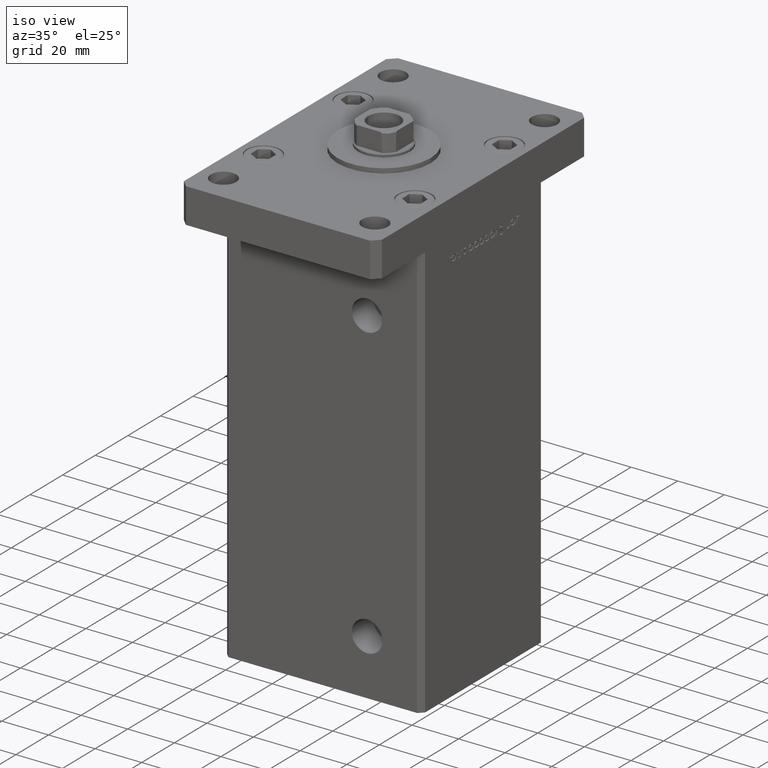
[diagram: clean part render]
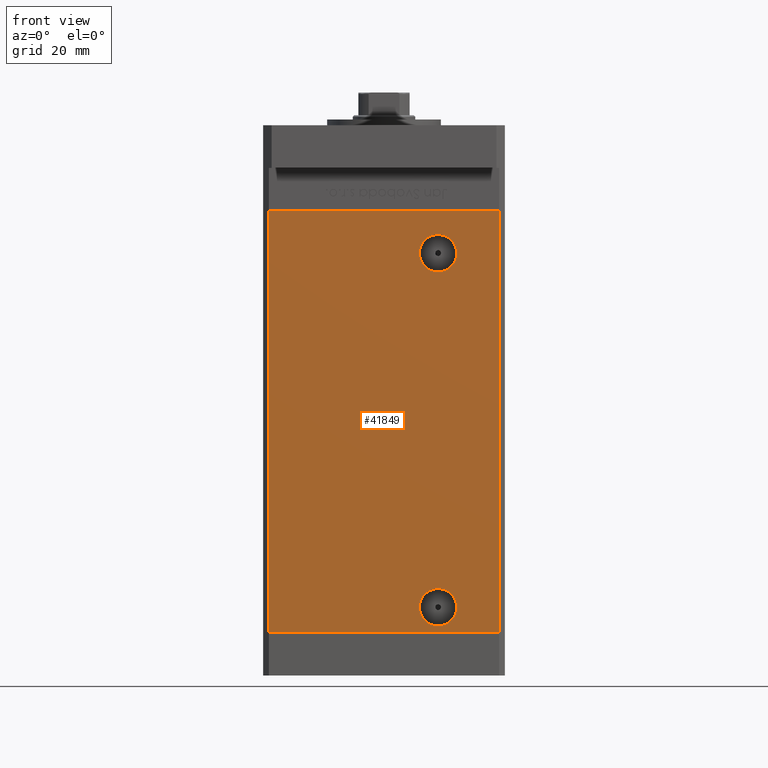
[diagram: tour spotlight — one face highlighted and labeled with its STEP entity id]
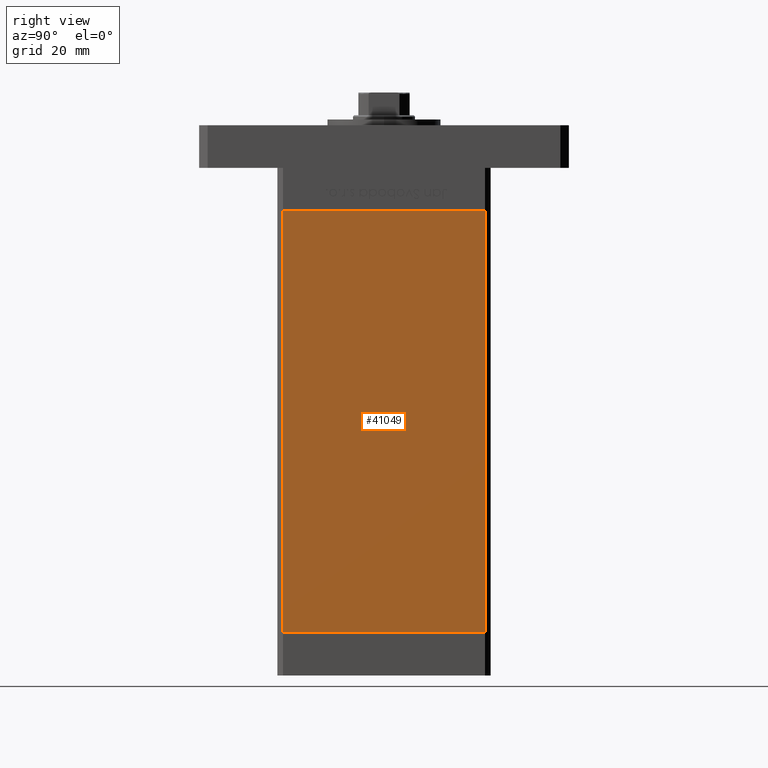
[diagram: tour spotlight — one face highlighted and labeled with its STEP entity id]
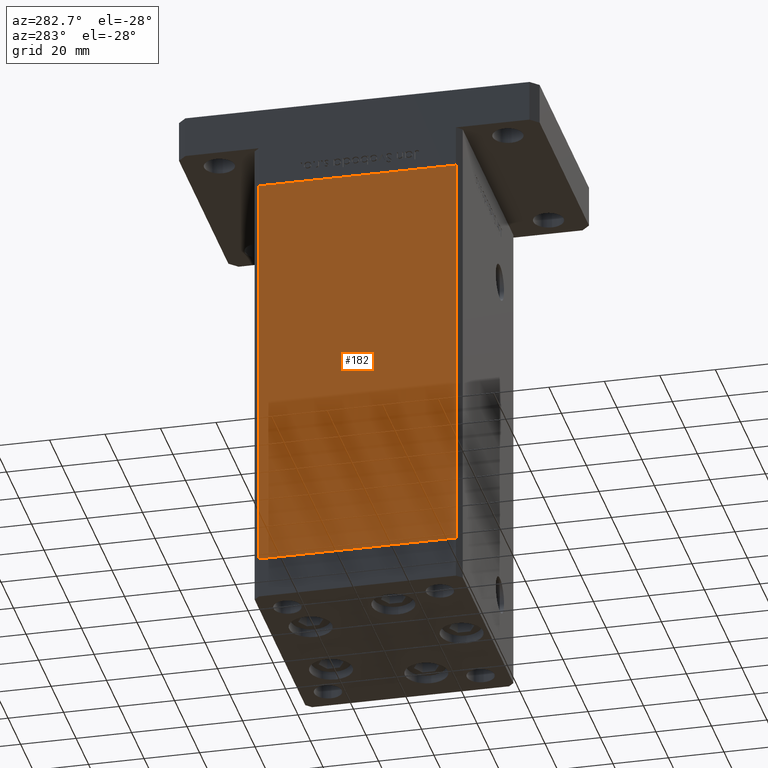
[diagram: tour spotlight — one face highlighted and labeled with its STEP entity id]
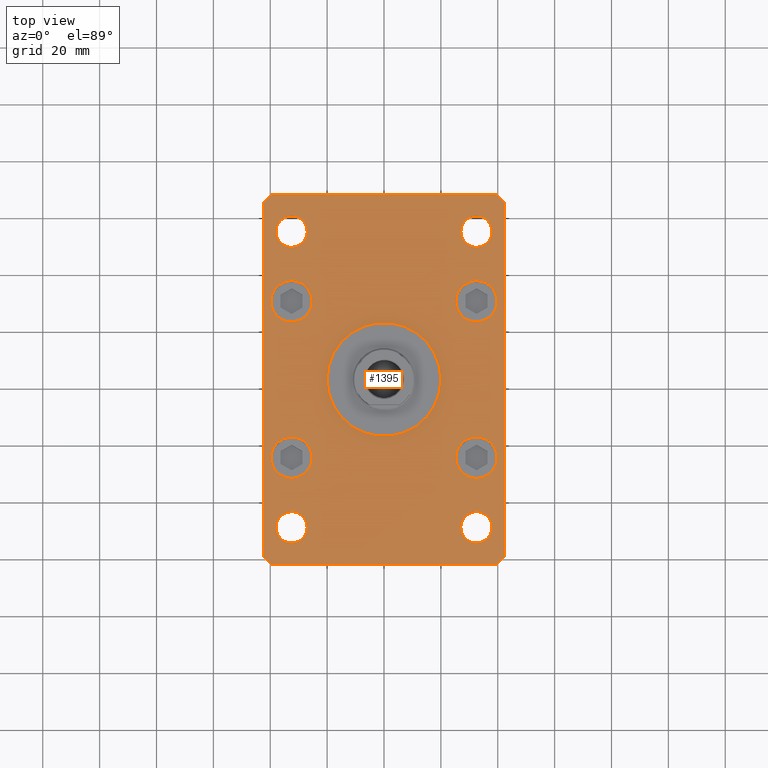
[diagram: tour spotlight — one face highlighted and labeled with its STEP entity id]
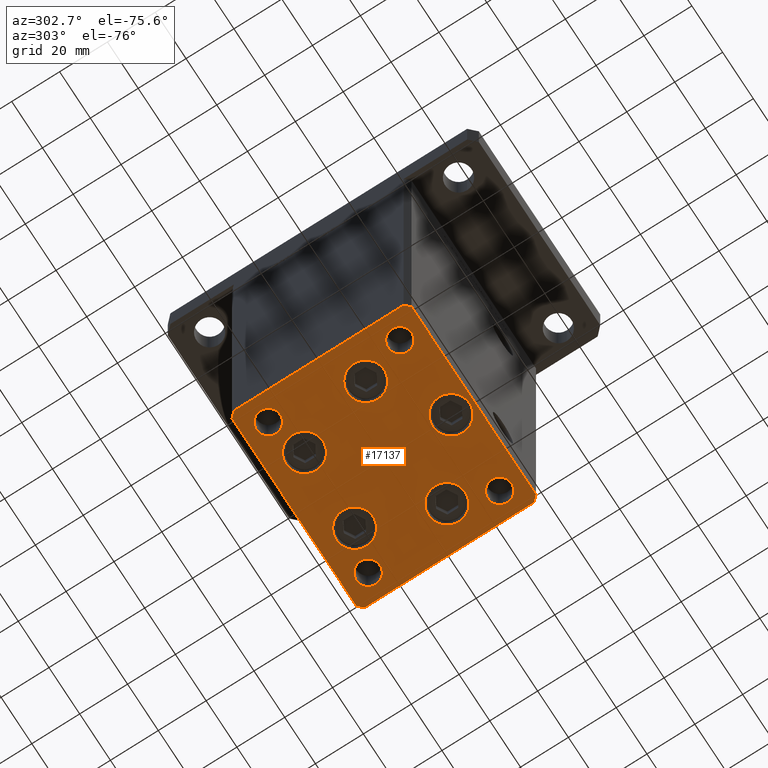
[diagram: tour spotlight — one face highlighted and labeled with its STEP entity id]
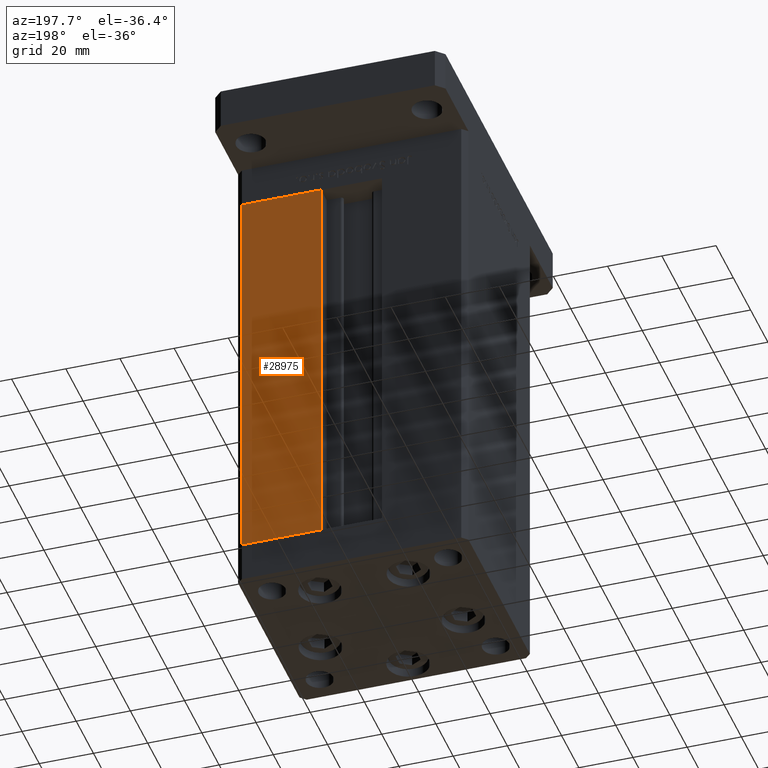
[diagram: tour spotlight — one face highlighted and labeled with its STEP entity id]
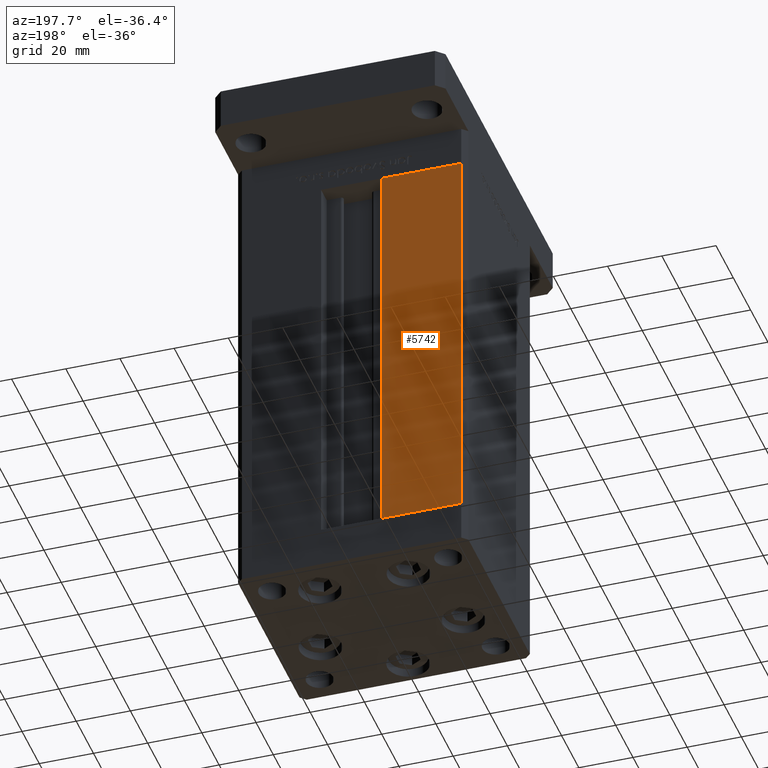
[diagram: tour spotlight — one face highlighted and labeled with its STEP entity id]
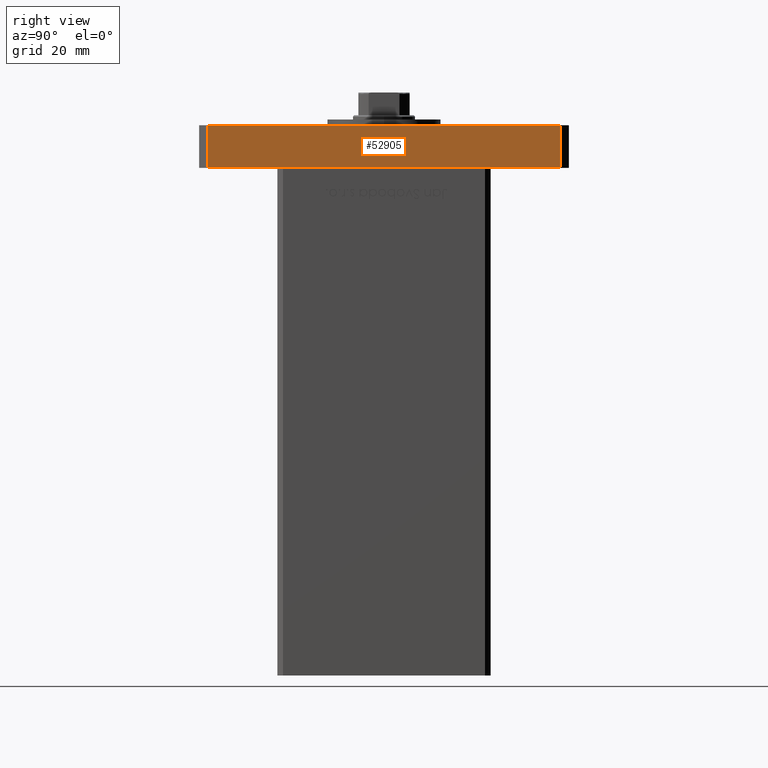
[diagram: tour spotlight — one face highlighted and labeled with its STEP entity id]
A machine part: a face-by-face anatomy tour. The part has 1310 B-rep faces; the first image is the clean iso view, then the 8 largest visible faces are spotlighted one at a time (largest first), each with its STEP entity span.

Face 1 — front view, entity #41849. In plain terms, the highlighted planar face has unit normal (0, 1, 0).
Definition (entity closure, byte-faithful):
#1523 = CARTESIAN_POINT ( 'NONE',  ( 18.99999999999997513, -37.50000000000000711, 133.5000000000000000 ) ) ;
#1724 = AXIS2_PLACEMENT_3D ( 'NONE', #29708, #46253, #9062 ) ;
#2792 = CARTESIAN_POINT ( 'NONE',  ( 18.99999999999998934, -37.50000000000000711, 2.420000000000009699 ) ) ;
#2948 = CARTESIAN_POINT ( 'NONE',  ( -40.49999999999998579, -37.50000000000000711, 148.5000000000000000 ) ) ;
#3209 = ORIENTED_EDGE ( 'NONE', *, *, #13289, .F. ) ;
#3472 = VERTEX_POINT ( 'NONE', #2792 ) ;
#3538 = CARTESIAN_POINT ( 'NONE',  ( -40.49999999999998579, -37.50000000000000711, 0.000000000000000000 ) ) ;
#4376 = EDGE_CURVE ( 'NONE', #52568, #5019, #23503, .T. ) ;
#5019 = VERTEX_POINT ( 'NONE', #40154 ) ;
#5451 = VECTOR ( 'NONE', #37125, 1000.000000000000000 ) ;
#5746 = ORIENTED_EDGE ( 'NONE', *, *, #36098, .T. ) ;
#5931 = DIRECTION ( 'NONE',  ( 1.000000000000000000, 0.000000000000000000, 0.000000000000000000 ) ) ;
#7161 = CARTESIAN_POINT ( 'NONE',  ( 18.99999999999998934, -37.50000000000000711, 9.000000000000007105 ) ) ;
#7970 = DIRECTION ( 'NONE',  ( 0.000000000000000000, 0.000000000000000000, -1.000000000000000000 ) ) ;
#8718 = EDGE_CURVE ( 'NONE', #22430, #30689, #10105, .T. ) ;
#8840 = ORIENTED_EDGE ( 'NONE', *, *, #8718, .T. ) ;
#9062 = DIRECTION ( 'NONE',  ( 0.000000000000000000, 0.000000000000000000, -1.000000000000000000 ) ) ;
#9306 = DIRECTION ( 'NONE',  ( -0.000000000000000000, -0.000000000000000000, -1.000000000000000000 ) ) ;
#9844 = CARTESIAN_POINT ( 'NONE',  ( 18.99999999999997513, -37.50000000000000711, 133.5000000000000000 ) ) ;
#10105 = LINE ( 'NONE', #22596, #25208 ) ;
#10218 = LINE ( 'NONE', #26770, #48018 ) ;
#10935 = CARTESIAN_POINT ( 'NONE',  ( -40.49999999999998579, -37.50000000000000711, 148.5000000000000000 ) ) ;
#13289 = EDGE_CURVE ( 'NONE', #3472, #51623, #49638, .T. ) ;
#15020 = ORIENTED_EDGE ( 'NONE', *, *, #21373, .F. ) ;
#18626 = DIRECTION ( 'NONE',  ( 0.000000000000000000, 0.000000000000000000, -1.000000000000000000 ) ) ;
#19896 = PLANE ( 'NONE',  #22009 ) ;
#20175 = FACE_BOUND ( 'NONE', #44042, .T. ) ;
#20286 = LINE ( 'NONE', #36863, #5451 ) ;
#21373 = EDGE_CURVE ( 'NONE', #22430, #31246, #35528, .T. ) ;
#22009 = AXIS2_PLACEMENT_3D ( 'NONE', #10935, #40550, #48647 ) ;
#22157 = AXIS2_PLACEMENT_3D ( 'NONE', #9844, #50300, #26140 ) ;
#22430 = VERTEX_POINT ( 'NONE', #22449 ) ;
#22449 = CARTESIAN_POINT ( 'NONE',  ( -40.49999999999998579, -37.50000000000000711, 148.5000000000000000 ) ) ;
#22596 = CARTESIAN_POINT ( 'NONE',  ( -40.49999999999998579, -37.50000000000000711, 148.5000000000000000 ) ) ;
#23503 = CIRCLE ( 'NONE', #25254, 6.580000000000002736 ) ;
#23983 = FACE_BOUND ( 'NONE', #36100, .T. ) ;
#25208 = VECTOR ( 'NONE', #9306, 1000.000000000000000 ) ;
#25254 = AXIS2_PLACEMENT_3D ( 'NONE', #1523, #27291, #18626 ) ;
#26140 = DIRECTION ( 'NONE',  ( 0.000000000000000000, 0.000000000000000000, -1.000000000000000000 ) ) ;
#26770 = CARTESIAN_POINT ( 'NONE',  ( 40.49999999999998579, -37.50000000000000711, 148.5000000000000000 ) ) ;
#27291 = DIRECTION ( 'NONE',  ( -0.000000000000000000, 1.000000000000000000, -0.000000000000000000 ) ) ;
#28489 = EDGE_CURVE ( 'NONE', #51623, #3472, #32941, .T. ) ;
#29708 = CARTESIAN_POINT ( 'NONE',  ( 18.99999999999998934, -37.50000000000000711, 9.000000000000007105 ) ) ;
#30689 = VERTEX_POINT ( 'NONE', #3538 ) ;
#31246 = VERTEX_POINT ( 'NONE', #48659 ) ;
#32413 = DIRECTION ( 'NONE',  ( 0.000000000000000000, -1.000000000000000000, 0.000000000000000000 ) ) ;
#32941 = CIRCLE ( 'NONE', #1724, 6.579999999999998295 ) ;
#35142 = CARTESIAN_POINT ( 'NONE',  ( 18.99999999999998934, -37.50000000000000711, 15.58000000000000718 ) ) ;
#35528 = LINE ( 'NONE', #2948, #43811 ) ;
#35681 = ORIENTED_EDGE ( 'NONE', *, *, #39937, .F. ) ;
#35787 = AXIS2_PLACEMENT_3D ( 'NONE', #7161, #32413, #7970 ) ;
#36098 = EDGE_CURVE ( 'NONE', #30689, #38355, #20286, .T. ) ;
#36100 = EDGE_LOOP ( 'NONE', ( #3209, #44065 ) ) ;
#36863 = CARTESIAN_POINT ( 'NONE',  ( -40.49999999999998579, -37.50000000000000711, 0.000000000000000000 ) ) ;
#37125 = DIRECTION ( 'NONE',  ( 1.000000000000000000, 0.000000000000000000, 0.000000000000000000 ) ) ;
#38355 = VERTEX_POINT ( 'NONE', #52120 ) ;
#39937 = EDGE_CURVE ( 'NONE', #31246, #38355, #10218, .T. ) ;
#40004 = FACE_OUTER_BOUND ( 'NONE', #45319, .T. ) ;
#40154 = CARTESIAN_POINT ( 'NONE',  ( 18.99999999999997513, -37.50000000000000711, 126.9200000000000017 ) ) ;
#40550 = DIRECTION ( 'NONE',  ( 0.000000000000000000, 1.000000000000000000, 0.000000000000000000 ) ) ;
#41542 = CARTESIAN_POINT ( 'NONE',  ( 18.99999999999997513, -37.50000000000000711, 140.0800000000000125 ) ) ;
#41564 = ORIENTED_EDGE ( 'NONE', *, *, #46551, .T. ) ;
#41849 = ADVANCED_FACE ( 'NONE', ( #23983, #40004, #20175 ), #19896, .F. ) ;
#43321 = DIRECTION ( 'NONE',  ( -0.000000000000000000, -0.000000000000000000, -1.000000000000000000 ) ) ;
#43811 = VECTOR ( 'NONE', #5931, 1000.000000000000000 ) ;
#44042 = EDGE_LOOP ( 'NONE', ( #41564, #51681 ) ) ;
#44065 = ORIENTED_EDGE ( 'NONE', *, *, #28489, .F. ) ;
#45319 = EDGE_LOOP ( 'NONE', ( #5746, #35681, #15020, #8840 ) ) ;
#46253 = DIRECTION ( 'NONE',  ( 0.000000000000000000, -1.000000000000000000, 0.000000000000000000 ) ) ;
#46551 = EDGE_CURVE ( 'NONE', #5019, #52568, #52469, .T. ) ;
#48018 = VECTOR ( 'NONE', #43321, 1000.000000000000000 ) ;
#48647 = DIRECTION ( 'NONE',  ( 0.000000000000000000, -0.000000000000000000, 1.000000000000000000 ) ) ;
#48659 = CARTESIAN_POINT ( 'NONE',  ( 40.49999999999998579, -37.50000000000000711, 148.5000000000000000 ) ) ;
#49638 = CIRCLE ( 'NONE', #35787, 6.579999999999998295 ) ;
#50300 = DIRECTION ( 'NONE',  ( -0.000000000000000000, 1.000000000000000000, -0.000000000000000000 ) ) ;
#51623 = VERTEX_POINT ( 'NONE', #35142 ) ;
#51681 = ORIENTED_EDGE ( 'NONE', *, *, #4376, .T. ) ;
#52120 = CARTESIAN_POINT ( 'NONE',  ( 40.49999999999998579, -37.50000000000000711, 0.000000000000000000 ) ) ;
#52469 = CIRCLE ( 'NONE', #22157, 6.580000000000002736 ) ;
#52568 = VERTEX_POINT ( 'NONE', #41542 ) ;

Face 2 — right view, entity #41049. In plain terms, the highlighted planar face has unit normal (1, -0, 0).
Definition (entity closure, byte-faithful):
#1354 = ORIENTED_EDGE ( 'NONE', *, *, #13624, .F. ) ;
#2708 = CARTESIAN_POINT ( 'NONE',  ( 42.50000000000000711, 35.50000000000001421, 0.000000000000000000 ) ) ;
#3874 = DIRECTION ( 'NONE',  ( -0.000000000000000000, -0.000000000000000000, -1.000000000000000000 ) ) ;
#4861 = EDGE_CURVE ( 'NONE', #21663, #11868, #31446, .T. ) ;
#9180 = DIRECTION ( 'NONE',  ( -0.000000000000000000, -0.000000000000000000, -1.000000000000000000 ) ) ;
#11868 = VERTEX_POINT ( 'NONE', #17575 ) ;
#13046 = LINE ( 'NONE', #49428, #28854 ) ;
#13624 = EDGE_CURVE ( 'NONE', #44412, #23773, #13046, .T. ) ;
#17575 = CARTESIAN_POINT ( 'NONE',  ( 42.49999999999998579, -35.50000000000000711, 148.5000000000000000 ) ) ;
#19258 = ORIENTED_EDGE ( 'NONE', *, *, #51466, .F. ) ;
#19644 = DIRECTION ( 'NONE',  ( 2.931927001650941360E-16, 1.000000000000000000, 0.000000000000000000 ) ) ;
#21420 = LINE ( 'NONE', #50171, #44770 ) ;
#21663 = VERTEX_POINT ( 'NONE', #40093 ) ;
#21761 = VECTOR ( 'NONE', #23299, 1000.000000000000000 ) ;
#22241 = CARTESIAN_POINT ( 'NONE',  ( 42.50000000000000711, 35.50000000000001421, 148.5000000000000000 ) ) ;
#23170 = PLANE ( 'NONE',  #43725 ) ;
#23299 = DIRECTION ( 'NONE',  ( -2.931927001650941360E-16, -1.000000000000000000, 0.000000000000000000 ) ) ;
#23773 = VERTEX_POINT ( 'NONE', #41645 ) ;
#23991 = DIRECTION ( 'NONE',  ( 1.000000000000000000, -2.931927001650941360E-16, 0.000000000000000000 ) ) ;
#24069 = ORIENTED_EDGE ( 'NONE', *, *, #30361, .T. ) ;
#25225 = EDGE_LOOP ( 'NONE', ( #1354, #19258, #25522, #24069 ) ) ;
#25522 = ORIENTED_EDGE ( 'NONE', *, *, #4861, .T. ) ;
#28716 = VECTOR ( 'NONE', #3874, 1000.000000000000000 ) ;
#28854 = VECTOR ( 'NONE', #33437, 1000.000000000000000 ) ;
#30361 = EDGE_CURVE ( 'NONE', #11868, #23773, #40009, .T. ) ;
#31446 = LINE ( 'NONE', #22241, #21761 ) ;
#33437 = DIRECTION ( 'NONE',  ( -2.931927001650941360E-16, -1.000000000000000000, 0.000000000000000000 ) ) ;
#40009 = LINE ( 'NONE', #40552, #28716 ) ;
#40093 = CARTESIAN_POINT ( 'NONE',  ( 42.50000000000000711, 35.50000000000001421, 148.5000000000000000 ) ) ;
#40552 = CARTESIAN_POINT ( 'NONE',  ( 42.49999999999998579, -35.50000000000000711, 148.5000000000000000 ) ) ;
#41049 = ADVANCED_FACE ( 'NONE', ( #44860 ), #23170, .T. ) ;
#41645 = CARTESIAN_POINT ( 'NONE',  ( 42.49999999999998579, -35.50000000000000711, 0.000000000000000000 ) ) ;
#43725 = AXIS2_PLACEMENT_3D ( 'NONE', #48930, #23991, #19644 ) ;
#44412 = VERTEX_POINT ( 'NONE', #2708 ) ;
#44770 = VECTOR ( 'NONE', #9180, 1000.000000000000000 ) ;
#44860 = FACE_OUTER_BOUND ( 'NONE', #25225, .T. ) ;
#48930 = CARTESIAN_POINT ( 'NONE',  ( 42.50000000000000711, 35.50000000000001421, 148.5000000000000000 ) ) ;
#49428 = CARTESIAN_POINT ( 'NONE',  ( 42.50000000000000711, 35.50000000000001421, 0.000000000000000000 ) ) ;
#50171 = CARTESIAN_POINT ( 'NONE',  ( 42.50000000000000711, 35.50000000000001421, 148.5000000000000000 ) ) ;
#51466 = EDGE_CURVE ( 'NONE', #21663, #44412, #21420, .T. ) ;

Face 3 — auxiliary view, entity #182. In plain terms, the highlighted planar face has unit normal (1, 0, 0).
Definition (entity closure, byte-faithful):
#182 = ADVANCED_FACE ( 'NONE', ( #34527 ), #51848, .F. ) ;
#392 = VECTOR ( 'NONE', #39111, 1000.000000000000000 ) ;
#793 = DIRECTION ( 'NONE',  ( 2.931927001650941360E-16, -1.000000000000000000, 0.000000000000000000 ) ) ;
#1206 = DIRECTION ( 'NONE',  ( 2.931927001650941360E-16, -1.000000000000000000, 0.000000000000000000 ) ) ;
#2117 = CARTESIAN_POINT ( 'NONE',  ( -42.49999999999998579, -35.50000000000000711, 0.000000000000000000 ) ) ;
#2606 = VERTEX_POINT ( 'NONE', #50764 ) ;
#5449 = ORIENTED_EDGE ( 'NONE', *, *, #52952, .F. ) ;
#6768 = LINE ( 'NONE', #18475, #392 ) ;
#9495 = AXIS2_PLACEMENT_3D ( 'NONE', #14674, #39136, #43188 ) ;
#10726 = VECTOR ( 'NONE', #1206, 1000.000000000000000 ) ;
#11430 = ORIENTED_EDGE ( 'NONE', *, *, #44392, .T. ) ;
#12420 = CARTESIAN_POINT ( 'NONE',  ( -42.49999999999998579, -35.50000000000000711, 148.5000000000000000 ) ) ;
#12747 = CARTESIAN_POINT ( 'NONE',  ( -42.50000000000000711, 35.50000000000001421, 148.5000000000000000 ) ) ;
#12907 = ORIENTED_EDGE ( 'NONE', *, *, #17893, .T. ) ;
#14674 = CARTESIAN_POINT ( 'NONE',  ( -42.50000000000000711, 35.50000000000001421, 148.5000000000000000 ) ) ;
#17893 = EDGE_CURVE ( 'NONE', #2606, #52612, #18567, .T. ) ;
#17971 = VECTOR ( 'NONE', #793, 1000.000000000000000 ) ;
#18475 = CARTESIAN_POINT ( 'NONE',  ( -42.50000000000000711, 35.50000000000001421, 148.5000000000000000 ) ) ;
#18567 = LINE ( 'NONE', #35128, #10726 ) ;
#24062 = VECTOR ( 'NONE', #33597, 1000.000000000000000 ) ;
#29514 = LINE ( 'NONE', #12420, #24062 ) ;
#30979 = CARTESIAN_POINT ( 'NONE',  ( -42.50000000000000711, 35.50000000000001421, 148.5000000000000000 ) ) ;
#31387 = VERTEX_POINT ( 'NONE', #30979 ) ;
#33127 = LINE ( 'NONE', #12747, #17971 ) ;
#33552 = VERTEX_POINT ( 'NONE', #42102 ) ;
#33597 = DIRECTION ( 'NONE',  ( -0.000000000000000000, -0.000000000000000000, -1.000000000000000000 ) ) ;
#34527 = FACE_OUTER_BOUND ( 'NONE', #41536, .T. ) ;
#35128 = CARTESIAN_POINT ( 'NONE',  ( -42.50000000000000711, 35.50000000000001421, 0.000000000000000000 ) ) ;
#39111 = DIRECTION ( 'NONE',  ( -0.000000000000000000, -0.000000000000000000, -1.000000000000000000 ) ) ;
#39136 = DIRECTION ( 'NONE',  ( 1.000000000000000000, 2.931927001650941360E-16, -0.000000000000000000 ) ) ;
#41536 = EDGE_LOOP ( 'NONE', ( #12907, #5449, #42489, #11430 ) ) ;
#42102 = CARTESIAN_POINT ( 'NONE',  ( -42.49999999999998579, -35.50000000000000711, 148.5000000000000000 ) ) ;
#42489 = ORIENTED_EDGE ( 'NONE', *, *, #52521, .F. ) ;
#43188 = DIRECTION ( 'NONE',  ( -2.931927001650941360E-16, 1.000000000000000000, 0.000000000000000000 ) ) ;
#44392 = EDGE_CURVE ( 'NONE', #31387, #2606, #6768, .T. ) ;
#50764 = CARTESIAN_POINT ( 'NONE',  ( -42.50000000000000711, 35.50000000000001421, 0.000000000000000000 ) ) ;
#51848 = PLANE ( 'NONE',  #9495 ) ;
#52521 = EDGE_CURVE ( 'NONE', #31387, #33552, #33127, .T. ) ;
#52612 = VERTEX_POINT ( 'NONE', #2117 ) ;
#52952 = EDGE_CURVE ( 'NONE', #33552, #52612, #29514, .T. ) ;

Face 4 — top view, entity #1395. In plain terms, the highlighted planar face has unit normal (0, 0, 1).
Definition (entity closure, byte-faithful):
#180 = EDGE_LOOP ( 'NONE', ( #36825, #22908 ) ) ;
#300 = CIRCLE ( 'NONE', #53110, 20.00000000000000000 ) ;
#841 = DIRECTION ( 'NONE',  ( -0.7071067811865417996, 0.7071067811865532349, 0.000000000000000000 ) ) ;
#965 = ORIENTED_EDGE ( 'NONE', *, *, #7199, .F. ) ;
#1008 = VERTEX_POINT ( 'NONE', #46608 ) ;
#1087 = EDGE_CURVE ( 'NONE', #22448, #44617, #35548, .T. ) ;
#1347 = LINE ( 'NONE', #9749, #24669 ) ;
#1395 = ADVANCED_FACE ( 'NONE', ( #53555, #32948, #11236, #12045, #27796, #48954, #28345, #35969, #3364, #44350 ), #19935, .T. ) ;
#1933 = VECTOR ( 'NONE', #36385, 1000.000000000000000 ) ;
#2413 = EDGE_CURVE ( 'NONE', #46890, #11085, #23466, .T. ) ;
#2978 = EDGE_CURVE ( 'NONE', #13965, #24671, #39652, .T. ) ;
#3030 = CARTESIAN_POINT ( 'NONE',  ( 39.50000000000001421, -64.99999999999988631, 15.00000000000000000 ) ) ;
#3078 = DIRECTION ( 'NONE',  ( 1.000000000000000000, 0.000000000000000000, 0.000000000000000000 ) ) ;
#3178 = ORIENTED_EDGE ( 'NONE', *, *, #42762, .F. ) ;
#3221 = EDGE_LOOP ( 'NONE', ( #36369, #50486 ) ) ;
#3364 = FACE_BOUND ( 'NONE', #37114, .T. ) ;
#3372 = CARTESIAN_POINT ( 'NONE',  ( 32.50000000000000000, 51.99999999999999289, 15.00000000000000000 ) ) ;
#3425 = VERTEX_POINT ( 'NONE', #5788 ) ;
#4014 = CARTESIAN_POINT ( 'NONE',  ( 26.99999999999998579, -52.00000000000000711, 15.00000000000000000 ) ) ;
#4355 = AXIS2_PLACEMENT_3D ( 'NONE', #24280, #49493, #45152 ) ;
#4377 = AXIS2_PLACEMENT_3D ( 'NONE', #14903, #51799, #6214 ) ;
#4411 = CARTESIAN_POINT ( 'NONE',  ( 32.49999999999997868, -52.00000000000000711, 15.00000000000000000 ) ) ;
#4676 = CIRCLE ( 'NONE', #46287, 5.499999999999994671 ) ;
#5045 = DIRECTION ( 'NONE',  ( 1.000000000000000000, 0.000000000000000000, 0.000000000000000000 ) ) ;
#5051 = EDGE_CURVE ( 'NONE', #44617, #22448, #27869, .T. ) ;
#5679 = CARTESIAN_POINT ( 'NONE',  ( -39.50000000000000000, -65.00000000000000000, 15.00000000000000000 ) ) ;
#5727 = CARTESIAN_POINT ( 'NONE',  ( 32.49999999999997868, -52.00000000000000711, 15.00000000000000000 ) ) ;
#5788 = CARTESIAN_POINT ( 'NONE',  ( -26.99999999999998579, -52.00000000000000711, 15.00000000000000000 ) ) ;
#6128 = VERTEX_POINT ( 'NONE', #22585 ) ;
#6134 = LINE ( 'NONE', #22712, #22896 ) ;
#6214 = DIRECTION ( 'NONE',  ( 1.000000000000000000, 0.000000000000000000, 0.000000000000000000 ) ) ;
#6397 = AXIS2_PLACEMENT_3D ( 'NONE', #4411, #21262, #46202 ) ;
#6601 = ORIENTED_EDGE ( 'NONE', *, *, #20525, .F. ) ;
#6606 = CARTESIAN_POINT ( 'NONE',  ( 0.000000000000000000, 0.000000000000000000, 15.00000000000000000 ) ) ;
#7031 = CARTESIAN_POINT ( 'NONE',  ( -42.50000000000002132, 62.00000000000000711, 15.00000000000000000 ) ) ;
#7199 = EDGE_CURVE ( 'NONE', #11541, #6128, #49442, .T. ) ;
#7449 = EDGE_CURVE ( 'NONE', #28572, #52375, #11321, .T. ) ;
#7838 = AXIS2_PLACEMENT_3D ( 'NONE', #26407, #23135, #19061 ) ;
#7952 = DIRECTION ( 'NONE',  ( 1.000000000000000000, 0.000000000000000000, 0.000000000000000000 ) ) ;
#8868 = CARTESIAN_POINT ( 'NONE',  ( -42.50000000000002132, 62.00000000000000711, 15.00000000000000000 ) ) ;
#9036 = CARTESIAN_POINT ( 'NONE',  ( 32.50000000000000000, 27.50000000000000000, 15.00000000000000000 ) ) ;
#9145 = CIRCLE ( 'NONE', #29963, 7.249999999999999112 ) ;
#9749 = CARTESIAN_POINT ( 'NONE',  ( 39.50000000000001421, -64.99999999999988631, 15.00000000000000000 ) ) ;
#10065 = DIRECTION ( 'NONE',  ( 1.000000000000000000, 0.000000000000000000, 0.000000000000000000 ) ) ;
#10836 = ORIENTED_EDGE ( 'NONE', *, *, #5051, .F. ) ;
#11027 = CARTESIAN_POINT ( 'NONE',  ( -32.50000000000000711, 27.50000000000000000, 15.00000000000000000 ) ) ;
#11068 = CARTESIAN_POINT ( 'NONE',  ( -39.50000000000003553, 65.00000000000000000, 15.00000000000000000 ) ) ;
#11085 = VERTEX_POINT ( 'NONE', #50131 ) ;
#11236 = FACE_BOUND ( 'NONE', #33011, .T. ) ;
#11321 = CIRCLE ( 'NONE', #13950, 7.249999999999999112 ) ;
#11541 = VERTEX_POINT ( 'NONE', #33135 ) ;
#11698 = VECTOR ( 'NONE', #38204, 1000.000000000000000 ) ;
#11703 = CIRCLE ( 'NONE', #25459, 5.499999999999998224 ) ;
#11707 = ORIENTED_EDGE ( 'NONE', *, *, #2978, .T. ) ;
#12045 = FACE_BOUND ( 'NONE', #16502, .T. ) ;
#12608 = AXIS2_PLACEMENT_3D ( 'NONE', #29516, #46065, #17299 ) ;
#13011 = CIRCLE ( 'NONE', #43337, 7.249999999999999112 ) ;
#13608 = CARTESIAN_POINT ( 'NONE',  ( 39.75000000000000000, 27.50000000000000000, 15.00000000000000000 ) ) ;
#13875 = EDGE_CURVE ( 'NONE', #29390, #19660, #44218, .T. ) ;
#13950 = AXIS2_PLACEMENT_3D ( 'NONE', #9036, #52078, #14376 ) ;
#13965 = VERTEX_POINT ( 'NONE', #40721 ) ;
#14376 = DIRECTION ( 'NONE',  ( 1.000000000000000000, 0.000000000000000000, 0.000000000000000000 ) ) ;
#14549 = EDGE_CURVE ( 'NONE', #24671, #1008, #38053, .T. ) ;
#14597 = CARTESIAN_POINT ( 'NONE',  ( -37.99999999999997868, -52.00000000000000711, 15.00000000000000000 ) ) ;
#14705 = DIRECTION ( 'NONE',  ( 1.000000000000000000, 0.000000000000000000, 0.000000000000000000 ) ) ;
#14903 = CARTESIAN_POINT ( 'NONE',  ( -32.50000000000000000, -27.50000000000000000, 15.00000000000000000 ) ) ;
#15031 = EDGE_CURVE ( 'NONE', #17845, #44200, #300, .T. ) ;
#15074 = AXIS2_PLACEMENT_3D ( 'NONE', #36490, #36763, #44054 ) ;
#15423 = CARTESIAN_POINT ( 'NONE',  ( -32.50000000000000711, 27.50000000000000000, 15.00000000000000000 ) ) ;
#15998 = VECTOR ( 'NONE', #35114, 1000.000000000000000 ) ;
#16502 = EDGE_LOOP ( 'NONE', ( #45732, #27895 ) ) ;
#16526 = VECTOR ( 'NONE', #35306, 1000.000000000000000 ) ;
#16609 = AXIS2_PLACEMENT_3D ( 'NONE', #15423, #44457, #36350 ) ;
#17299 = DIRECTION ( 'NONE',  ( 1.000000000000000000, 0.000000000000000000, 0.000000000000000000 ) ) ;
#17698 = DIRECTION ( 'NONE',  ( 0.000000000000000000, 0.000000000000000000, 1.000000000000000000 ) ) ;
#17830 = CARTESIAN_POINT ( 'NONE',  ( 39.50000000000002842, 65.00000000000002842, 15.00000000000000000 ) ) ;
#17845 = VERTEX_POINT ( 'NONE', #31039 ) ;
#17983 = CARTESIAN_POINT ( 'NONE',  ( 42.50000000000000000, 62.00000000000000711, 15.00000000000000000 ) ) ;
#17995 = EDGE_CURVE ( 'NONE', #46375, #27712, #31548, .T. ) ;
#18047 = EDGE_CURVE ( 'NONE', #52375, #28572, #38504, .T. ) ;
#18214 = CIRCLE ( 'NONE', #25162, 20.00000000000000000 ) ;
#18552 = LINE ( 'NONE', #34048, #15998 ) ;
#18566 = EDGE_CURVE ( 'NONE', #23083, #13965, #1347, .T. ) ;
#18907 = DIRECTION ( 'NONE',  ( 1.000000000000000000, 0.000000000000000000, 0.000000000000000000 ) ) ;
#19061 = DIRECTION ( 'NONE',  ( 1.000000000000000000, 0.000000000000000000, 0.000000000000000000 ) ) ;
#19315 = ORIENTED_EDGE ( 'NONE', *, *, #36605, .F. ) ;
#19660 = VERTEX_POINT ( 'NONE', #52304 ) ;
#19935 = PLANE ( 'NONE',  #4355 ) ;
#20016 = EDGE_LOOP ( 'NONE', ( #10836, #29727 ) ) ;
#20188 = DIRECTION ( 'NONE',  ( 0.000000000000000000, 0.000000000000000000, 1.000000000000000000 ) ) ;
#20525 = EDGE_CURVE ( 'NONE', #11085, #46890, #9145, .T. ) ;
#20737 = EDGE_CURVE ( 'NONE', #27712, #46375, #46419, .T. ) ;
#21262 = DIRECTION ( 'NONE',  ( 0.000000000000000000, 0.000000000000000000, 1.000000000000000000 ) ) ;
#21405 = ORIENTED_EDGE ( 'NONE', *, *, #51107, .F. ) ;
#21694 = ORIENTED_EDGE ( 'NONE', *, *, #39942, .T. ) ;
#22365 = EDGE_LOOP ( 'NONE', ( #27868, #51222, #11707, #45139, #37683, #21694, #43897, #52003 ) ) ;
#22448 = VERTEX_POINT ( 'NONE', #51195 ) ;
#22585 = CARTESIAN_POINT ( 'NONE',  ( 27.00000000000001421, 51.99999999999999289, 15.00000000000000000 ) ) ;
#22712 = CARTESIAN_POINT ( 'NONE',  ( -39.50000000000003553, 65.00000000000000000, 15.00000000000000000 ) ) ;
#22896 = VECTOR ( 'NONE', #39280, 1000.000000000000000 ) ;
#22908 = ORIENTED_EDGE ( 'NONE', *, *, #42855, .F. ) ;
#23083 = VERTEX_POINT ( 'NONE', #3030 ) ;
#23135 = DIRECTION ( 'NONE',  ( 0.000000000000000000, 0.000000000000000000, 1.000000000000000000 ) ) ;
#23187 = DIRECTION ( 'NONE',  ( 1.000000000000000000, 0.000000000000000000, 0.000000000000000000 ) ) ;
#23410 = DIRECTION ( 'NONE',  ( 0.000000000000000000, 0.000000000000000000, 1.000000000000000000 ) ) ;
#23466 = CIRCLE ( 'NONE', #7838, 7.249999999999999112 ) ;
#23874 = VERTEX_POINT ( 'NONE', #47532 ) ;
#24129 = EDGE_CURVE ( 'NONE', #39004, #50805, #13011, .T. ) ;
#24280 = CARTESIAN_POINT ( 'NONE',  ( 0.000000000000000000, 0.000000000000000000, 15.00000000000000000 ) ) ;
#24432 = EDGE_CURVE ( 'NONE', #44200, #17845, #18214, .T. ) ;
#24581 = AXIS2_PLACEMENT_3D ( 'NONE', #43481, #23410, #14705 ) ;
#24669 = VECTOR ( 'NONE', #48522, 1000.000000000000114 ) ;
#24671 = VERTEX_POINT ( 'NONE', #17983 ) ;
#24984 = EDGE_CURVE ( 'NONE', #50805, #39004, #47589, .T. ) ;
#25162 = AXIS2_PLACEMENT_3D ( 'NONE', #6606, #40311, #23187 ) ;
#25459 = AXIS2_PLACEMENT_3D ( 'NONE', #5727, #17698, #10065 ) ;
#25495 = CIRCLE ( 'NONE', #6397, 5.499999999999998224 ) ;
#25516 = AXIS2_PLACEMENT_3D ( 'NONE', #32671, #20188, #3078 ) ;
#25642 = CARTESIAN_POINT ( 'NONE',  ( -39.50000000000000000, -65.00000000000000000, 15.00000000000000000 ) ) ;
#26048 = AXIS2_PLACEMENT_3D ( 'NONE', #37594, #45157, #41646 ) ;
#26067 = CARTESIAN_POINT ( 'NONE',  ( -32.50000000000000000, -27.50000000000000000, 15.00000000000000000 ) ) ;
#26339 = DIRECTION ( 'NONE',  ( 1.000000000000000000, 0.000000000000000000, 0.000000000000000000 ) ) ;
#26407 = CARTESIAN_POINT ( 'NONE',  ( 32.50000000000000000, -27.50000000000000000, 15.00000000000000000 ) ) ;
#26485 = CARTESIAN_POINT ( 'NONE',  ( 0.000000000000000000, 0.000000000000000000, 15.00000000000000000 ) ) ;
#27085 = DIRECTION ( 'NONE',  ( 0.000000000000000000, 0.000000000000000000, 1.000000000000000000 ) ) ;
#27445 = CIRCLE ( 'NONE', #32669, 5.499999999999991118 ) ;
#27712 = VERTEX_POINT ( 'NONE', #43224 ) ;
#27796 = FACE_BOUND ( 'NONE', #31250, .T. ) ;
#27868 = ORIENTED_EDGE ( 'NONE', *, *, #31683, .T. ) ;
#27869 = CIRCLE ( 'NONE', #16609, 7.249999999999999112 ) ;
#27895 = ORIENTED_EDGE ( 'NONE', *, *, #17995, .F. ) ;
#28345 = FACE_BOUND ( 'NONE', #36701, .T. ) ;
#28572 = VERTEX_POINT ( 'NONE', #51631 ) ;
#28582 = EDGE_LOOP ( 'NONE', ( #32096, #38752 ) ) ;
#28918 = CIRCLE ( 'NONE', #24581, 5.499999999999994671 ) ;
#29390 = VERTEX_POINT ( 'NONE', #8868 ) ;
#29516 = CARTESIAN_POINT ( 'NONE',  ( -32.50000000000000000, 52.00000000000000000, 15.00000000000000000 ) ) ;
#29727 = ORIENTED_EDGE ( 'NONE', *, *, #1087, .F. ) ;
#29963 = AXIS2_PLACEMENT_3D ( 'NONE', #47174, #27085, #43372 ) ;
#30387 = LINE ( 'NONE', #5679, #51225 ) ;
#31039 = CARTESIAN_POINT ( 'NONE',  ( -20.00000000000000000, 0.000000000000000000, 15.00000000000000000 ) ) ;
#31250 = EDGE_LOOP ( 'NONE', ( #19315, #3178 ) ) ;
#31429 = ORIENTED_EDGE ( 'NONE', *, *, #7449, .F. ) ;
#31548 = CIRCLE ( 'NONE', #25516, 5.499999999999994671 ) ;
#31683 = EDGE_CURVE ( 'NONE', #44869, #23083, #30387, .T. ) ;
#32096 = ORIENTED_EDGE ( 'NONE', *, *, #15031, .F. ) ;
#32669 = AXIS2_PLACEMENT_3D ( 'NONE', #3372, #48415, #36250 ) ;
#32671 = CARTESIAN_POINT ( 'NONE',  ( -32.50000000000000000, 52.00000000000000000, 15.00000000000000000 ) ) ;
#32948 = FACE_BOUND ( 'NONE', #20016, .T. ) ;
#33011 = EDGE_LOOP ( 'NONE', ( #6601, #35607 ) ) ;
#33135 = CARTESIAN_POINT ( 'NONE',  ( 37.99999999999999289, 51.99999999999999289, 15.00000000000000000 ) ) ;
#33449 = CARTESIAN_POINT ( 'NONE',  ( 20.00000000000000000, 2.449293598294706513E-15, 15.00000000000000000 ) ) ;
#34048 = CARTESIAN_POINT ( 'NONE',  ( -42.49999999999999289, -62.00000000000001421, 15.00000000000000000 ) ) ;
#34647 = LINE ( 'NONE', #17830, #11698 ) ;
#35114 = DIRECTION ( 'NONE',  ( 0.7071067811865483499, -0.7071067811865466846, 0.000000000000000000 ) ) ;
#35267 = DIRECTION ( 'NONE',  ( 1.000000000000000000, 1.405345600791337191E-15, 0.000000000000000000 ) ) ;
#35306 = DIRECTION ( 'NONE',  ( 0.000000000000000000, 1.000000000000000000, 0.000000000000000000 ) ) ;
#35548 = CIRCLE ( 'NONE', #38164, 7.249999999999999112 ) ;
#35607 = ORIENTED_EDGE ( 'NONE', *, *, #2413, .F. ) ;
#35710 = CARTESIAN_POINT ( 'NONE',  ( -27.00000000000000711, 52.00000000000000000, 15.00000000000000000 ) ) ;
#35969 = FACE_BOUND ( 'NONE', #3221, .T. ) ;
#36250 = DIRECTION ( 'NONE',  ( 1.000000000000000000, 0.000000000000000000, 0.000000000000000000 ) ) ;
#36350 = DIRECTION ( 'NONE',  ( 1.000000000000000000, 0.000000000000000000, 0.000000000000000000 ) ) ;
#36369 = ORIENTED_EDGE ( 'NONE', *, *, #24984, .F. ) ;
#36385 = DIRECTION ( 'NONE',  ( 2.238352872228137677E-16, -1.000000000000000000, 0.000000000000000000 ) ) ;
#36490 = CARTESIAN_POINT ( 'NONE',  ( 32.50000000000000000, 27.50000000000000000, 15.00000000000000000 ) ) ;
#36605 = EDGE_CURVE ( 'NONE', #46297, #3425, #28918, .T. ) ;
#36701 = EDGE_LOOP ( 'NONE', ( #21405, #965 ) ) ;
#36763 = DIRECTION ( 'NONE',  ( 0.000000000000000000, 0.000000000000000000, 1.000000000000000000 ) ) ;
#36825 = ORIENTED_EDGE ( 'NONE', *, *, #41984, .F. ) ;
#37114 = EDGE_LOOP ( 'NONE', ( #31429, #51162 ) ) ;
#37594 = CARTESIAN_POINT ( 'NONE',  ( 32.50000000000000000, 51.99999999999999289, 15.00000000000000000 ) ) ;
#37683 = ORIENTED_EDGE ( 'NONE', *, *, #45626, .T. ) ;
#38053 = LINE ( 'NONE', #49436, #50530 ) ;
#38164 = AXIS2_PLACEMENT_3D ( 'NONE', #11027, #44130, #18907 ) ;
#38204 = DIRECTION ( 'NONE',  ( -1.000000000000000000, -3.513364001978340512E-16, 0.000000000000000000 ) ) ;
#38504 = CIRCLE ( 'NONE', #15074, 7.249999999999999112 ) ;
#38752 = ORIENTED_EDGE ( 'NONE', *, *, #24432, .F. ) ;
#39004 = VERTEX_POINT ( 'NONE', #40629 ) ;
#39280 = DIRECTION ( 'NONE',  ( -0.7071067811865466846, -0.7071067811865483499, 0.000000000000000000 ) ) ;
#39652 = LINE ( 'NONE', #47484, #16526 ) ;
#39942 = EDGE_CURVE ( 'NONE', #42000, #29390, #6134, .T. ) ;
#40311 = DIRECTION ( 'NONE',  ( 0.000000000000000000, 0.000000000000000000, 1.000000000000000000 ) ) ;
#40559 = DIRECTION ( 'NONE',  ( 0.000000000000000000, 0.000000000000000000, 1.000000000000000000 ) ) ;
#40629 = CARTESIAN_POINT ( 'NONE',  ( -25.25000000000000000, -27.50000000000000000, 15.00000000000000000 ) ) ;
#40721 = CARTESIAN_POINT ( 'NONE',  ( 42.50000000000000000, -61.99999999999988631, 15.00000000000000000 ) ) ;
#41646 = DIRECTION ( 'NONE',  ( 1.000000000000000000, 0.000000000000000000, 0.000000000000000000 ) ) ;
#41984 = EDGE_CURVE ( 'NONE', #53668, #23874, #11703, .T. ) ;
#42000 = VERTEX_POINT ( 'NONE', #11068 ) ;
#42253 = DIRECTION ( 'NONE',  ( 0.000000000000000000, 0.000000000000000000, 1.000000000000000000 ) ) ;
#42762 = EDGE_CURVE ( 'NONE', #3425, #46297, #4676, .T. ) ;
#42855 = EDGE_CURVE ( 'NONE', #23874, #53668, #25495, .T. ) ;
#42896 = DIRECTION ( 'NONE',  ( 0.000000000000000000, 0.000000000000000000, 1.000000000000000000 ) ) ;
#43224 = CARTESIAN_POINT ( 'NONE',  ( -38.00000000000000000, 52.00000000000000000, 15.00000000000000000 ) ) ;
#43294 = CARTESIAN_POINT ( 'NONE',  ( -39.75000000000000711, 27.50000000000000000, 15.00000000000000000 ) ) ;
#43337 = AXIS2_PLACEMENT_3D ( 'NONE', #26067, #42896, #26339 ) ;
#43372 = DIRECTION ( 'NONE',  ( 1.000000000000000000, 0.000000000000000000, 0.000000000000000000 ) ) ;
#43481 = CARTESIAN_POINT ( 'NONE',  ( -32.49999999999997868, -52.00000000000000711, 15.00000000000000000 ) ) ;
#43897 = ORIENTED_EDGE ( 'NONE', *, *, #13875, .T. ) ;
#44054 = DIRECTION ( 'NONE',  ( 1.000000000000000000, 0.000000000000000000, 0.000000000000000000 ) ) ;
#44130 = DIRECTION ( 'NONE',  ( 0.000000000000000000, 0.000000000000000000, 1.000000000000000000 ) ) ;
#44200 = VERTEX_POINT ( 'NONE', #33449 ) ;
#44218 = LINE ( 'NONE', #7031, #1933 ) ;
#44350 = FACE_BOUND ( 'NONE', #180, .T. ) ;
#44457 = DIRECTION ( 'NONE',  ( 0.000000000000000000, 0.000000000000000000, 1.000000000000000000 ) ) ;
#44617 = VERTEX_POINT ( 'NONE', #43294 ) ;
#44869 = VERTEX_POINT ( 'NONE', #25642 ) ;
#45001 = EDGE_CURVE ( 'NONE', #19660, #44869, #18552, .T. ) ;
#45125 = CARTESIAN_POINT ( 'NONE',  ( -32.49999999999997868, -52.00000000000000711, 15.00000000000000000 ) ) ;
#45139 = ORIENTED_EDGE ( 'NONE', *, *, #14549, .T. ) ;
#45152 = DIRECTION ( 'NONE',  ( 1.000000000000000000, 0.000000000000000000, -0.000000000000000000 ) ) ;
#45157 = DIRECTION ( 'NONE',  ( 0.000000000000000000, 0.000000000000000000, 1.000000000000000000 ) ) ;
#45626 = EDGE_CURVE ( 'NONE', #1008, #42000, #34647, .T. ) ;
#45732 = ORIENTED_EDGE ( 'NONE', *, *, #20737, .F. ) ;
#46065 = DIRECTION ( 'NONE',  ( 0.000000000000000000, 0.000000000000000000, 1.000000000000000000 ) ) ;
#46202 = DIRECTION ( 'NONE',  ( 1.000000000000000000, 0.000000000000000000, 0.000000000000000000 ) ) ;
#46287 = AXIS2_PLACEMENT_3D ( 'NONE', #45125, #40559, #7952 ) ;
#46297 = VERTEX_POINT ( 'NONE', #14597 ) ;
#46375 = VERTEX_POINT ( 'NONE', #35710 ) ;
#46419 = CIRCLE ( 'NONE', #12608, 5.499999999999994671 ) ;
#46437 = CARTESIAN_POINT ( 'NONE',  ( 39.75000000000000000, -27.50000000000000000, 15.00000000000000000 ) ) ;
#46608 = CARTESIAN_POINT ( 'NONE',  ( 39.50000000000002842, 65.00000000000002842, 15.00000000000000000 ) ) ;
#46890 = VERTEX_POINT ( 'NONE', #46437 ) ;
#47174 = CARTESIAN_POINT ( 'NONE',  ( 32.50000000000000000, -27.50000000000000000, 15.00000000000000000 ) ) ;
#47484 = CARTESIAN_POINT ( 'NONE',  ( 42.50000000000000000, -61.99999999999988631, 15.00000000000000000 ) ) ;
#47532 = CARTESIAN_POINT ( 'NONE',  ( 37.99999999999997868, -52.00000000000000711, 15.00000000000000000 ) ) ;
#47589 = CIRCLE ( 'NONE', #4377, 7.249999999999999112 ) ;
#48415 = DIRECTION ( 'NONE',  ( 0.000000000000000000, 0.000000000000000000, 1.000000000000000000 ) ) ;
#48522 = DIRECTION ( 'NONE',  ( 0.7071067811865459074, 0.7071067811865491270, 0.000000000000000000 ) ) ;
#48954 = FACE_OUTER_BOUND ( 'NONE', #22365, .T. ) ;
#49436 = CARTESIAN_POINT ( 'NONE',  ( 42.50000000000000000, 62.00000000000000711, 15.00000000000000000 ) ) ;
#49442 = CIRCLE ( 'NONE', #26048, 5.499999999999991118 ) ;
#49493 = DIRECTION ( 'NONE',  ( 0.000000000000000000, 0.000000000000000000, 1.000000000000000000 ) ) ;
#50131 = CARTESIAN_POINT ( 'NONE',  ( 25.25000000000000000, -27.50000000000000000, 15.00000000000000000 ) ) ;
#50486 = ORIENTED_EDGE ( 'NONE', *, *, #24129, .F. ) ;
#50530 = VECTOR ( 'NONE', #841, 1000.000000000000000 ) ;
#50805 = VERTEX_POINT ( 'NONE', #53091 ) ;
#51107 = EDGE_CURVE ( 'NONE', #6128, #11541, #27445, .T. ) ;
#51162 = ORIENTED_EDGE ( 'NONE', *, *, #18047, .F. ) ;
#51195 = CARTESIAN_POINT ( 'NONE',  ( -25.25000000000000711, 27.50000000000000000, 15.00000000000000000 ) ) ;
#51222 = ORIENTED_EDGE ( 'NONE', *, *, #18566, .T. ) ;
#51225 = VECTOR ( 'NONE', #35267, 1000.000000000000000 ) ;
#51631 = CARTESIAN_POINT ( 'NONE',  ( 25.25000000000000000, 27.50000000000000000, 15.00000000000000000 ) ) ;
#51799 = DIRECTION ( 'NONE',  ( 0.000000000000000000, 0.000000000000000000, 1.000000000000000000 ) ) ;
#52003 = ORIENTED_EDGE ( 'NONE', *, *, #45001, .T. ) ;
#52078 = DIRECTION ( 'NONE',  ( 0.000000000000000000, 0.000000000000000000, 1.000000000000000000 ) ) ;
#52304 = CARTESIAN_POINT ( 'NONE',  ( -42.49999999999999289, -62.00000000000001421, 15.00000000000000000 ) ) ;
#52375 = VERTEX_POINT ( 'NONE', #13608 ) ;
#53091 = CARTESIAN_POINT ( 'NONE',  ( -39.75000000000000000, -27.50000000000000000, 15.00000000000000000 ) ) ;
#53110 = AXIS2_PLACEMENT_3D ( 'NONE', #26485, #42253, #5045 ) ;
#53555 = FACE_BOUND ( 'NONE', #28582, .T. ) ;
#53668 = VERTEX_POINT ( 'NONE', #4014 ) ;

Face 5 — auxiliary view, entity #17137. In plain terms, the highlighted planar face has unit normal (0, 0, -1).
Definition (entity closure, byte-faithful):
#308 = ORIENTED_EDGE ( 'NONE', *, *, #14535, .F. ) ;
#369 = ORIENTED_EDGE ( 'NONE', *, *, #11821, .T. ) ;
#927 = DIRECTION ( 'NONE',  ( 1.000000000000000000, 0.000000000000000000, 0.000000000000000000 ) ) ;
#1031 = CARTESIAN_POINT ( 'NONE',  ( -16.32291334290543006, 22.74999999999999645, 0.000000000000000000 ) ) ;
#1207 = ORIENTED_EDGE ( 'NONE', *, *, #13381, .T. ) ;
#1463 = FACE_BOUND ( 'NONE', #25209, .T. ) ;
#1488 = VECTOR ( 'NONE', #1584, 1000.000000000000000 ) ;
#1584 = DIRECTION ( 'NONE',  ( -0.7071067811865463515, -0.7071067811865487940, 0.000000000000000000 ) ) ;
#1848 = DIRECTION ( 'NONE',  ( 1.000000000000000000, 0.000000000000000000, 0.000000000000000000 ) ) ;
#1959 = CARTESIAN_POINT ( 'NONE',  ( 3.429011037612589276E-15, -28.00000000000000000, 0.000000000000000000 ) ) ;
#2060 = DIRECTION ( 'NONE',  ( 1.000000000000000000, 0.000000000000000000, 0.000000000000000000 ) ) ;
#2108 = CARTESIAN_POINT ( 'NONE',  ( -37.50000000000000711, -27.49999999999999645, 0.000000000000000000 ) ) ;
#2275 = LINE ( 'NONE', #18584, #41970 ) ;
#2318 = EDGE_LOOP ( 'NONE', ( #32343, #23041, #27228, #26021, #9718, #49403, #5628, #33823 ) ) ;
#2493 = DIRECTION ( 'NONE',  ( 1.000000000000000000, 0.000000000000000000, 0.000000000000000000 ) ) ;
#2519 = DIRECTION ( 'NONE',  ( 1.000000000000000000, 0.000000000000000000, 0.000000000000000000 ) ) ;
#2705 = EDGE_LOOP ( 'NONE', ( #35395, #1207 ) ) ;
#2936 = AXIS2_PLACEMENT_3D ( 'NONE', #18166, #26040, #13816 ) ;
#3500 = DIRECTION ( 'NONE',  ( 0.000000000000000000, -0.000000000000000000, -1.000000000000000000 ) ) ;
#3640 = CIRCLE ( 'NONE', #21855, 7.750000000000003553 ) ;
#4051 = VECTOR ( 'NONE', #35842, 1000.000000000000000 ) ;
#4064 = EDGE_LOOP ( 'NONE', ( #44089, #39424 ) ) ;
#4204 = CARTESIAN_POINT ( 'NONE',  ( -32.50000000000000000, 27.50000000000000355, 0.000000000000000000 ) ) ;
#4424 = DIRECTION ( 'NONE',  ( 0.000000000000000000, -0.000000000000000000, -1.000000000000000000 ) ) ;
#4639 = CIRCLE ( 'NONE', #2936, 4.999999999999997335 ) ;
#4873 = DIRECTION ( 'NONE',  ( 1.000000000000000000, 0.000000000000000000, 0.000000000000000000 ) ) ;
#4906 = DIRECTION ( 'NONE',  ( -0.000000000000000000, 0.000000000000000000, 1.000000000000000000 ) ) ;
#4934 = CARTESIAN_POINT ( 'NONE',  ( 42.50000000000000711, -35.50000000000000000, 0.000000000000000000 ) ) ;
#5207 = EDGE_LOOP ( 'NONE', ( #6106, #37770 ) ) ;
#5628 = ORIENTED_EDGE ( 'NONE', *, *, #52670, .T. ) ;
#5893 = LINE ( 'NONE', #27064, #10126 ) ;
#6106 = ORIENTED_EDGE ( 'NONE', *, *, #47996, .T. ) ;
#6125 = CARTESIAN_POINT ( 'NONE',  ( 26.39865316429776954, -9.333333333333330373, 0.000000000000000000 ) ) ;
#6317 = CARTESIAN_POINT ( 'NONE',  ( 0.000000000000000000, 0.000000000000000000, 0.000000000000000000 ) ) ;
#6749 = CARTESIAN_POINT ( 'NONE',  ( -32.50000000000000000, -27.49999999999999645, 0.000000000000000000 ) ) ;
#6866 = EDGE_LOOP ( 'NONE', ( #33840, #38155 ) ) ;
#6987 = DIRECTION ( 'NONE',  ( 1.000000000000000000, 0.000000000000000000, 0.000000000000000000 ) ) ;
#7033 = CARTESIAN_POINT ( 'NONE',  ( -42.50000000000000711, 35.49999999999997158, 0.000000000000000000 ) ) ;
#7287 = AXIS2_PLACEMENT_3D ( 'NONE', #6317, #51109, #927 ) ;
#7481 = VERTEX_POINT ( 'NONE', #52622 ) ;
#7941 = CIRCLE ( 'NONE', #8787, 7.750000000000000000 ) ;
#8541 = LINE ( 'NONE', #25112, #35173 ) ;
#8787 = AXIS2_PLACEMENT_3D ( 'NONE', #41820, #12763, #4873 ) ;
#9162 = CIRCLE ( 'NONE', #29982, 7.750000000000000000 ) ;
#9238 = CIRCLE ( 'NONE', #38745, 4.999999999999997335 ) ;
#9594 = VECTOR ( 'NONE', #15017, 1000.000000000000114 ) ;
#9599 = VERTEX_POINT ( 'NONE', #13593 ) ;
#9718 = ORIENTED_EDGE ( 'NONE', *, *, #48435, .T. ) ;
#9930 = ORIENTED_EDGE ( 'NONE', *, *, #20341, .T. ) ;
#10126 = VECTOR ( 'NONE', #38772, 1000.000000000000000 ) ;
#10224 = VERTEX_POINT ( 'NONE', #51628 ) ;
#10527 = DIRECTION ( 'NONE',  ( 0.000000000000000000, -0.000000000000000000, -1.000000000000000000 ) ) ;
#10993 = CARTESIAN_POINT ( 'NONE',  ( -27.50000000000000000, -27.49999999999999645, 0.000000000000000000 ) ) ;
#11138 = VERTEX_POINT ( 'NONE', #29256 ) ;
#11235 = LINE ( 'NONE', #15314, #39536 ) ;
#11518 = CARTESIAN_POINT ( 'NONE',  ( 8.572913342905422951, 22.75000000000000000, 0.000000000000000000 ) ) ;
#11520 = CIRCLE ( 'NONE', #16719, 7.750000000000003553 ) ;
#11555 = AXIS2_PLACEMENT_3D ( 'NONE', #41853, #4906, #12795 ) ;
#11821 = EDGE_CURVE ( 'NONE', #28304, #16556, #52180, .T. ) ;
#11986 = VERTEX_POINT ( 'NONE', #22440 ) ;
#12060 = EDGE_CURVE ( 'NONE', #35823, #30007, #29661, .T. ) ;
#12318 = AXIS2_PLACEMENT_3D ( 'NONE', #6749, #3500, #48009 ) ;
#12763 = DIRECTION ( 'NONE',  ( 0.000000000000000000, -0.000000000000000000, -1.000000000000000000 ) ) ;
#12795 = DIRECTION ( 'NONE',  ( 1.000000000000000000, 0.000000000000000000, 0.000000000000000000 ) ) ;
#12835 = CARTESIAN_POINT ( 'NONE',  ( 16.32291334290542295, 22.75000000000000000, 0.000000000000000000 ) ) ;
#12878 = CARTESIAN_POINT ( 'NONE',  ( 27.50000000000000355, -27.49999999999999645, 0.000000000000000000 ) ) ;
#13381 = EDGE_CURVE ( 'NONE', #15063, #23706, #11520, .T. ) ;
#13414 = DIRECTION ( 'NONE',  ( -0.000000000000000000, 0.000000000000000000, 1.000000000000000000 ) ) ;
#13418 = FACE_BOUND ( 'NONE', #4064, .T. ) ;
#13593 = CARTESIAN_POINT ( 'NONE',  ( 40.49999999999991473, 37.50000000000000711, 0.000000000000000000 ) ) ;
#13622 = CARTESIAN_POINT ( 'NONE',  ( 3.429011037612589276E-15, -28.00000000000000000, 0.000000000000000000 ) ) ;
#13735 = DIRECTION ( 'NONE',  ( 1.000000000000000000, 0.000000000000000000, 0.000000000000000000 ) ) ;
#13816 = DIRECTION ( 'NONE',  ( 1.000000000000000000, 0.000000000000000000, 0.000000000000000000 ) ) ;
#14535 = EDGE_CURVE ( 'NONE', #39813, #27591, #37595, .T. ) ;
#15017 = DIRECTION ( 'NONE',  ( 0.7071067811865474617, 0.7071067811865474617, 0.000000000000000000 ) ) ;
#15063 = VERTEX_POINT ( 'NONE', #38462 ) ;
#15291 = CARTESIAN_POINT ( 'NONE',  ( -7.749999999999996447, -28.00000000000000000, 0.000000000000000000 ) ) ;
#15314 = CARTESIAN_POINT ( 'NONE',  ( -42.50000000000000000, -35.50000000000000711, 0.000000000000000000 ) ) ;
#16119 = CIRCLE ( 'NONE', #49929, 4.999999999999997335 ) ;
#16297 = DIRECTION ( 'NONE',  ( 0.000000000000000000, -0.000000000000000000, -1.000000000000000000 ) ) ;
#16556 = VERTEX_POINT ( 'NONE', #2108 ) ;
#16705 = VERTEX_POINT ( 'NONE', #23839 ) ;
#16719 = AXIS2_PLACEMENT_3D ( 'NONE', #12835, #4424, #37580 ) ;
#16779 = CIRCLE ( 'NONE', #47051, 7.750000000000000000 ) ;
#17029 = VERTEX_POINT ( 'NONE', #12878 ) ;
#17055 = VERTEX_POINT ( 'NONE', #24854 ) ;
#17137 = ADVANCED_FACE ( 'NONE', ( #1463, #35123, #22627, #42461, #39195, #51639, #13418, #18029, #31033, #47565 ), #26953, .T. ) ;
#17175 = DIRECTION ( 'NONE',  ( 1.000000000000000000, 0.000000000000000000, 0.000000000000000000 ) ) ;
#17286 = CARTESIAN_POINT ( 'NONE',  ( -26.39865316429776954, -9.333333333333337478, 0.000000000000000000 ) ) ;
#17376 = CARTESIAN_POINT ( 'NONE',  ( -42.50000000000000000, -35.50000000000000711, 0.000000000000000000 ) ) ;
#17497 = DIRECTION ( 'NONE',  ( -0.7071067811865474617, 0.7071067811865474617, 0.000000000000000000 ) ) ;
#17559 = DIRECTION ( 'NONE',  ( 0.000000000000000000, -0.000000000000000000, -1.000000000000000000 ) ) ;
#17745 = CARTESIAN_POINT ( 'NONE',  ( -37.50000000000000711, 27.50000000000000355, 0.000000000000000000 ) ) ;
#17808 = VERTEX_POINT ( 'NONE', #39332 ) ;
#17854 = AXIS2_PLACEMENT_3D ( 'NONE', #17286, #17559, #13735 ) ;
#18029 = FACE_BOUND ( 'NONE', #38623, .T. ) ;
#18166 = CARTESIAN_POINT ( 'NONE',  ( 32.50000000000000000, -27.49999999999999645, 0.000000000000000000 ) ) ;
#18538 = VERTEX_POINT ( 'NONE', #17376 ) ;
#18584 = CARTESIAN_POINT ( 'NONE',  ( 40.49999999999991473, 37.50000000000000711, 0.000000000000000000 ) ) ;
#19406 = DIRECTION ( 'NONE',  ( 0.000000000000000000, -0.000000000000000000, -1.000000000000000000 ) ) ;
#20341 = EDGE_CURVE ( 'NONE', #7481, #17055, #53313, .T. ) ;
#20353 = CIRCLE ( 'NONE', #35975, 4.999999999999997335 ) ;
#21855 = AXIS2_PLACEMENT_3D ( 'NONE', #34085, #42488, #42234 ) ;
#22100 = CARTESIAN_POINT ( 'NONE',  ( 42.50000000000000711, -35.50000000000000000, 0.000000000000000000 ) ) ;
#22277 = VERTEX_POINT ( 'NONE', #24937 ) ;
#22440 = CARTESIAN_POINT ( 'NONE',  ( 37.50000000000000000, 27.49999999999999645, 0.000000000000000000 ) ) ;
#22627 = FACE_BOUND ( 'NONE', #30282, .T. ) ;
#22704 = DIRECTION ( 'NONE',  ( 0.000000000000000000, -0.000000000000000000, -1.000000000000000000 ) ) ;
#22732 = DIRECTION ( 'NONE',  ( 0.000000000000000000, -0.000000000000000000, -1.000000000000000000 ) ) ;
#22766 = EDGE_CURVE ( 'NONE', #18538, #10224, #11235, .T. ) ;
#22959 = CARTESIAN_POINT ( 'NONE',  ( 34.14865316429776954, -9.333333333333328596, 0.000000000000000000 ) ) ;
#23041 = ORIENTED_EDGE ( 'NONE', *, *, #51540, .T. ) ;
#23570 = CARTESIAN_POINT ( 'NONE',  ( 32.50000000000000000, 27.49999999999999645, 0.000000000000000000 ) ) ;
#23706 = VERTEX_POINT ( 'NONE', #11518 ) ;
#23839 = CARTESIAN_POINT ( 'NONE',  ( 37.50000000000000000, -27.49999999999999645, 0.000000000000000000 ) ) ;
#24543 = CIRCLE ( 'NONE', #39252, 7.750000000000000000 ) ;
#24854 = CARTESIAN_POINT ( 'NONE',  ( -8.572913342905431833, 22.74999999999999645, 0.000000000000000000 ) ) ;
#24937 = CARTESIAN_POINT ( 'NONE',  ( -34.14865316429776954, -9.333333333333337478, 0.000000000000000000 ) ) ;
#25112 = CARTESIAN_POINT ( 'NONE',  ( 42.49999999999992895, 35.50000000000000000, 0.000000000000000000 ) ) ;
#25209 = EDGE_LOOP ( 'NONE', ( #9930, #40352 ) ) ;
#25641 = LINE ( 'NONE', #22100, #25992 ) ;
#25992 = VECTOR ( 'NONE', #50588, 1000.000000000000000 ) ;
#26021 = ORIENTED_EDGE ( 'NONE', *, *, #28412, .T. ) ;
#26040 = DIRECTION ( 'NONE',  ( 0.000000000000000000, -0.000000000000000000, -1.000000000000000000 ) ) ;
#26532 = CARTESIAN_POINT ( 'NONE',  ( 18.64865316429776954, -9.333333333333330373, 0.000000000000000000 ) ) ;
#26953 = PLANE ( 'NONE',  #7287 ) ;
#27064 = CARTESIAN_POINT ( 'NONE',  ( -40.49999999999999289, -37.50000000000002132, 0.000000000000000000 ) ) ;
#27228 = ORIENTED_EDGE ( 'NONE', *, *, #31217, .T. ) ;
#27458 = CARTESIAN_POINT ( 'NONE',  ( 27.50000000000000355, 27.49999999999999645, 0.000000000000000000 ) ) ;
#27499 = DIRECTION ( 'NONE',  ( -0.000000000000000000, 0.000000000000000000, 1.000000000000000000 ) ) ;
#27591 = VERTEX_POINT ( 'NONE', #17745 ) ;
#27669 = LINE ( 'NONE', #7033, #4051 ) ;
#27791 = CARTESIAN_POINT ( 'NONE',  ( -40.50000000000000711, 37.49999999999997868, 0.000000000000000000 ) ) ;
#28186 = CARTESIAN_POINT ( 'NONE',  ( -32.50000000000000000, -27.49999999999999645, 0.000000000000000000 ) ) ;
#28304 = VERTEX_POINT ( 'NONE', #10993 ) ;
#28412 = EDGE_CURVE ( 'NONE', #42900, #39341, #25641, .T. ) ;
#29173 = ORIENTED_EDGE ( 'NONE', *, *, #31287, .T. ) ;
#29256 = CARTESIAN_POINT ( 'NONE',  ( -18.64865316429776954, -9.333333333333335702, 0.000000000000000000 ) ) ;
#29661 = CIRCLE ( 'NONE', #44403, 7.750000000000000000 ) ;
#29925 = AXIS2_PLACEMENT_3D ( 'NONE', #53459, #16297, #32855 ) ;
#29982 = AXIS2_PLACEMENT_3D ( 'NONE', #31442, #10527, #1848 ) ;
#30007 = VERTEX_POINT ( 'NONE', #22959 ) ;
#30061 = CARTESIAN_POINT ( 'NONE',  ( -27.50000000000000000, 27.50000000000000355, 0.000000000000000000 ) ) ;
#30282 = EDGE_LOOP ( 'NONE', ( #43392, #46483 ) ) ;
#30327 = ORIENTED_EDGE ( 'NONE', *, *, #41528, .F. ) ;
#31033 = FACE_OUTER_BOUND ( 'NONE', #2318, .T. ) ;
#31217 = EDGE_CURVE ( 'NONE', #17808, #42900, #50399, .T. ) ;
#31287 = EDGE_CURVE ( 'NONE', #41022, #36157, #41708, .T. ) ;
#31442 = CARTESIAN_POINT ( 'NONE',  ( 26.39865316429776954, -9.333333333333330373, 0.000000000000000000 ) ) ;
#31665 = EDGE_CURVE ( 'NONE', #11138, #22277, #7941, .T. ) ;
#32343 = ORIENTED_EDGE ( 'NONE', *, *, #22766, .T. ) ;
#32472 = CIRCLE ( 'NONE', #41090, 5.000000000000000888 ) ;
#32855 = DIRECTION ( 'NONE',  ( 1.000000000000000000, 0.000000000000000000, 0.000000000000000000 ) ) ;
#33393 = EDGE_CURVE ( 'NONE', #23706, #15063, #3640, .T. ) ;
#33823 = ORIENTED_EDGE ( 'NONE', *, *, #51424, .T. ) ;
#33829 = EDGE_CURVE ( 'NONE', #16556, #28304, #52160, .T. ) ;
#33840 = ORIENTED_EDGE ( 'NONE', *, *, #48873, .F. ) ;
#34085 = CARTESIAN_POINT ( 'NONE',  ( 16.32291334290542295, 22.75000000000000000, 0.000000000000000000 ) ) ;
#34892 = CARTESIAN_POINT ( 'NONE',  ( 7.750000000000003553, -28.00000000000000000, 0.000000000000000000 ) ) ;
#35123 = FACE_BOUND ( 'NONE', #2705, .T. ) ;
#35173 = VECTOR ( 'NONE', #17497, 1000.000000000000114 ) ;
#35395 = ORIENTED_EDGE ( 'NONE', *, *, #33393, .T. ) ;
#35468 = VERTEX_POINT ( 'NONE', #27458 ) ;
#35823 = VERTEX_POINT ( 'NONE', #26532 ) ;
#35842 = DIRECTION ( 'NONE',  ( 9.773090005503140331E-17, -1.000000000000000000, 0.000000000000000000 ) ) ;
#35918 = EDGE_CURVE ( 'NONE', #17055, #7481, #24543, .T. ) ;
#35975 = AXIS2_PLACEMENT_3D ( 'NONE', #39737, #27499, #2519 ) ;
#36157 = VERTEX_POINT ( 'NONE', #34892 ) ;
#36596 = EDGE_CURVE ( 'NONE', #36157, #41022, #16779, .T. ) ;
#36626 = DIRECTION ( 'NONE',  ( 1.000000000000000000, 0.000000000000000000, 0.000000000000000000 ) ) ;
#37580 = DIRECTION ( 'NONE',  ( 1.000000000000000000, 0.000000000000000000, 0.000000000000000000 ) ) ;
#37595 = CIRCLE ( 'NONE', #11555, 5.000000000000000888 ) ;
#37770 = ORIENTED_EDGE ( 'NONE', *, *, #31665, .T. ) ;
#38155 = ORIENTED_EDGE ( 'NONE', *, *, #41122, .F. ) ;
#38462 = CARTESIAN_POINT ( 'NONE',  ( 24.07291334290542650, 22.75000000000000000, 0.000000000000000000 ) ) ;
#38485 = EDGE_CURVE ( 'NONE', #16705, #17029, #4639, .T. ) ;
#38623 = EDGE_LOOP ( 'NONE', ( #308, #30327 ) ) ;
#38745 = AXIS2_PLACEMENT_3D ( 'NONE', #47879, #19406, #52221 ) ;
#38772 = DIRECTION ( 'NONE',  ( 1.000000000000000000, 1.713307136767217096E-16, 0.000000000000000000 ) ) ;
#39195 = FACE_BOUND ( 'NONE', #5207, .T. ) ;
#39252 = AXIS2_PLACEMENT_3D ( 'NONE', #1031, #22732, #46620 ) ;
#39285 = EDGE_LOOP ( 'NONE', ( #369, #47200 ) ) ;
#39332 = CARTESIAN_POINT ( 'NONE',  ( 40.50000000000000000, -37.50000000000000711, 0.000000000000000000 ) ) ;
#39341 = VERTEX_POINT ( 'NONE', #49408 ) ;
#39424 = ORIENTED_EDGE ( 'NONE', *, *, #51078, .T. ) ;
#39536 = VECTOR ( 'NONE', #40846, 1000.000000000000000 ) ;
#39664 = EDGE_LOOP ( 'NONE', ( #29173, #52662 ) ) ;
#39737 = CARTESIAN_POINT ( 'NONE',  ( 32.50000000000000000, 27.49999999999999645, 0.000000000000000000 ) ) ;
#39813 = VERTEX_POINT ( 'NONE', #30061 ) ;
#39964 = AXIS2_PLACEMENT_3D ( 'NONE', #13622, #50540, #17175 ) ;
#40155 = DIRECTION ( 'NONE',  ( 0.000000000000000000, -0.000000000000000000, -1.000000000000000000 ) ) ;
#40172 = VERTEX_POINT ( 'NONE', #27791 ) ;
#40320 = EDGE_CURVE ( 'NONE', #9599, #40172, #2275, .T. ) ;
#40352 = ORIENTED_EDGE ( 'NONE', *, *, #35918, .T. ) ;
#40846 = DIRECTION ( 'NONE',  ( 0.7071067811865463515, -0.7071067811865487940, 0.000000000000000000 ) ) ;
#41022 = VERTEX_POINT ( 'NONE', #15291 ) ;
#41090 = AXIS2_PLACEMENT_3D ( 'NONE', #4204, #13414, #46260 ) ;
#41122 = EDGE_CURVE ( 'NONE', #35468, #11986, #20353, .T. ) ;
#41276 = CIRCLE ( 'NONE', #17854, 7.750000000000000000 ) ;
#41528 = EDGE_CURVE ( 'NONE', #27591, #39813, #32472, .T. ) ;
#41708 = CIRCLE ( 'NONE', #39964, 7.750000000000000000 ) ;
#41820 = CARTESIAN_POINT ( 'NONE',  ( -26.39865316429776954, -9.333333333333337478, 0.000000000000000000 ) ) ;
#41853 = CARTESIAN_POINT ( 'NONE',  ( -32.50000000000000000, 27.50000000000000355, 0.000000000000000000 ) ) ;
#41970 = VECTOR ( 'NONE', #48404, 1000.000000000000000 ) ;
#42234 = DIRECTION ( 'NONE',  ( 1.000000000000000000, 0.000000000000000000, 0.000000000000000000 ) ) ;
#42330 = LINE ( 'NONE', #50979, #1488 ) ;
#42461 = FACE_BOUND ( 'NONE', #39664, .T. ) ;
#42488 = DIRECTION ( 'NONE',  ( 0.000000000000000000, -0.000000000000000000, -1.000000000000000000 ) ) ;
#42770 = VERTEX_POINT ( 'NONE', #44861 ) ;
#42900 = VERTEX_POINT ( 'NONE', #4934 ) ;
#43392 = ORIENTED_EDGE ( 'NONE', *, *, #12060, .T. ) ;
#44089 = ORIENTED_EDGE ( 'NONE', *, *, #38485, .T. ) ;
#44175 = DIRECTION ( 'NONE',  ( -0.000000000000000000, 0.000000000000000000, 1.000000000000000000 ) ) ;
#44403 = AXIS2_PLACEMENT_3D ( 'NONE', #6125, #22704, #2060 ) ;
#44861 = CARTESIAN_POINT ( 'NONE',  ( -42.50000000000000711, 35.49999999999997158, 0.000000000000000000 ) ) ;
#45260 = AXIS2_PLACEMENT_3D ( 'NONE', #28186, #40155, #36626 ) ;
#46260 = DIRECTION ( 'NONE',  ( 1.000000000000000000, 0.000000000000000000, 0.000000000000000000 ) ) ;
#46483 = ORIENTED_EDGE ( 'NONE', *, *, #48808, .T. ) ;
#46620 = DIRECTION ( 'NONE',  ( 1.000000000000000000, 0.000000000000000000, 0.000000000000000000 ) ) ;
#47051 = AXIS2_PLACEMENT_3D ( 'NONE', #1959, #48351, #2493 ) ;
#47200 = ORIENTED_EDGE ( 'NONE', *, *, #33829, .T. ) ;
#47565 = FACE_BOUND ( 'NONE', #39285, .T. ) ;
#47879 = CARTESIAN_POINT ( 'NONE',  ( 32.50000000000000000, -27.49999999999999645, 0.000000000000000000 ) ) ;
#47996 = EDGE_CURVE ( 'NONE', #22277, #11138, #41276, .T. ) ;
#48009 = DIRECTION ( 'NONE',  ( 1.000000000000000000, 0.000000000000000000, 0.000000000000000000 ) ) ;
#48351 = DIRECTION ( 'NONE',  ( 0.000000000000000000, -0.000000000000000000, -1.000000000000000000 ) ) ;
#48404 = DIRECTION ( 'NONE',  ( -1.000000000000000000, -3.426614273534436165E-16, 0.000000000000000000 ) ) ;
#48435 = EDGE_CURVE ( 'NONE', #39341, #9599, #8541, .T. ) ;
#48808 = EDGE_CURVE ( 'NONE', #30007, #35823, #9162, .T. ) ;
#48873 = EDGE_CURVE ( 'NONE', #11986, #35468, #16119, .T. ) ;
#49403 = ORIENTED_EDGE ( 'NONE', *, *, #40320, .T. ) ;
#49408 = CARTESIAN_POINT ( 'NONE',  ( 42.49999999999992895, 35.50000000000000000, 0.000000000000000000 ) ) ;
#49929 = AXIS2_PLACEMENT_3D ( 'NONE', #23570, #44175, #6987 ) ;
#50399 = LINE ( 'NONE', #52189, #9594 ) ;
#50540 = DIRECTION ( 'NONE',  ( 0.000000000000000000, -0.000000000000000000, -1.000000000000000000 ) ) ;
#50588 = DIRECTION ( 'NONE',  ( -1.172770800660376741E-15, 1.000000000000000000, 0.000000000000000000 ) ) ;
#50979 = CARTESIAN_POINT ( 'NONE',  ( -40.50000000000000711, 37.49999999999997868, 0.000000000000000000 ) ) ;
#51078 = EDGE_CURVE ( 'NONE', #17029, #16705, #9238, .T. ) ;
#51109 = DIRECTION ( 'NONE',  ( -0.000000000000000000, 0.000000000000000000, 1.000000000000000000 ) ) ;
#51424 = EDGE_CURVE ( 'NONE', #42770, #18538, #27669, .T. ) ;
#51540 = EDGE_CURVE ( 'NONE', #10224, #17808, #5893, .T. ) ;
#51628 = CARTESIAN_POINT ( 'NONE',  ( -40.49999999999999289, -37.50000000000002132, 0.000000000000000000 ) ) ;
#51639 = FACE_BOUND ( 'NONE', #6866, .T. ) ;
#52160 = CIRCLE ( 'NONE', #12318, 5.000000000000000888 ) ;
#52180 = CIRCLE ( 'NONE', #45260, 5.000000000000000888 ) ;
#52189 = CARTESIAN_POINT ( 'NONE',  ( 40.50000000000000000, -37.50000000000000711, 0.000000000000000000 ) ) ;
#52221 = DIRECTION ( 'NONE',  ( 1.000000000000000000, 0.000000000000000000, 0.000000000000000000 ) ) ;
#52622 = CARTESIAN_POINT ( 'NONE',  ( -24.07291334290543006, 22.74999999999999645, 0.000000000000000000 ) ) ;
#52662 = ORIENTED_EDGE ( 'NONE', *, *, #36596, .T. ) ;
#52670 = EDGE_CURVE ( 'NONE', #40172, #42770, #42330, .T. ) ;
#53313 = CIRCLE ( 'NONE', #29925, 7.750000000000000000 ) ;
#53459 = CARTESIAN_POINT ( 'NONE',  ( -16.32291334290543006, 22.74999999999999645, 0.000000000000000000 ) ) ;

Face 6 — auxiliary view, entity #28975. In plain terms, the highlighted planar face has unit normal (-0, -1, 0).
Definition (entity closure, byte-faithful):
#6 = VERTEX_POINT ( 'NONE', #1228 ) ;
#1051 = CARTESIAN_POINT ( 'NONE',  ( 40.50000000000000000, 37.50000000000000711, 0.000000000000000000 ) ) ;
#1228 = CARTESIAN_POINT ( 'NONE',  ( 40.50000000000000000, 37.50000000000000711, 148.5000000000000000 ) ) ;
#1803 = ORIENTED_EDGE ( 'NONE', *, *, #28046, .T. ) ;
#5495 = CARTESIAN_POINT ( 'NONE',  ( -11.25000000000000000, 37.50000000000000000, 0.000000000000000000 ) ) ;
#6180 = DIRECTION ( 'NONE',  ( -0.000000000000000000, -0.000000000000000000, -1.000000000000000000 ) ) ;
#8139 = DIRECTION ( 'NONE',  ( -2.372271420139223331E-16, -1.000000000000000000, 0.000000000000000000 ) ) ;
#11061 = CARTESIAN_POINT ( 'NONE',  ( -11.25000000000000000, 37.50000000000000000, 148.5000000000000000 ) ) ;
#13594 = EDGE_LOOP ( 'NONE', ( #47798, #1803, #15264, #51328 ) ) ;
#13901 = LINE ( 'NONE', #5495, #44715 ) ;
#14782 = AXIS2_PLACEMENT_3D ( 'NONE', #27969, #8139, #24173 ) ;
#15264 = ORIENTED_EDGE ( 'NONE', *, *, #16712, .T. ) ;
#15479 = PLANE ( 'NONE',  #14782 ) ;
#16023 = FACE_OUTER_BOUND ( 'NONE', #13594, .T. ) ;
#16712 = EDGE_CURVE ( 'NONE', #19426, #6, #52574, .T. ) ;
#19426 = VERTEX_POINT ( 'NONE', #30098 ) ;
#19446 = VERTEX_POINT ( 'NONE', #1051 ) ;
#22494 = CARTESIAN_POINT ( 'NONE',  ( 40.50000000000000000, 37.50000000000000711, 148.5000000000000000 ) ) ;
#22948 = EDGE_CURVE ( 'NONE', #19446, #34802, #13901, .T. ) ;
#24173 = DIRECTION ( 'NONE',  ( 1.000000000000000000, -2.372271420139223331E-16, 0.000000000000000000 ) ) ;
#26817 = LINE ( 'NONE', #22494, #27372 ) ;
#27372 = VECTOR ( 'NONE', #6180, 1000.000000000000000 ) ;
#27969 = CARTESIAN_POINT ( 'NONE',  ( -11.25000000000000000, 37.50000000000000000, 148.5000000000000000 ) ) ;
#28046 = EDGE_CURVE ( 'NONE', #34802, #19426, #41196, .T. ) ;
#28971 = CARTESIAN_POINT ( 'NONE',  ( 11.25000000000000000, 37.50000000000000000, 0.000000000000000000 ) ) ;
#28975 = ADVANCED_FACE ( 'NONE', ( #16023 ), #15479, .F. ) ;
#30098 = CARTESIAN_POINT ( 'NONE',  ( 11.24999999999999289, 37.50000000000000000, 148.5000000000000000 ) ) ;
#32079 = VECTOR ( 'NONE', #40197, 1000.000000000000000 ) ;
#34802 = VERTEX_POINT ( 'NONE', #38049 ) ;
#38049 = CARTESIAN_POINT ( 'NONE',  ( 11.25000000000000000, 37.50000000000000000, 0.000000000000000000 ) ) ;
#40197 = DIRECTION ( 'NONE',  ( -0.000000000000000000, -0.000000000000000000, 1.000000000000000000 ) ) ;
#41196 = LINE ( 'NONE', #28971, #32079 ) ;
#44715 = VECTOR ( 'NONE', #51073, 1000.000000000000000 ) ;
#47798 = ORIENTED_EDGE ( 'NONE', *, *, #22948, .T. ) ;
#48853 = EDGE_CURVE ( 'NONE', #6, #19446, #26817, .T. ) ;
#48891 = VECTOR ( 'NONE', #49316, 1000.000000000000000 ) ;
#49316 = DIRECTION ( 'NONE',  ( 1.000000000000000000, 0.000000000000000000, 0.000000000000000000 ) ) ;
#51073 = DIRECTION ( 'NONE',  ( -1.000000000000000000, 2.372271420139223331E-16, 0.000000000000000000 ) ) ;
#51328 = ORIENTED_EDGE ( 'NONE', *, *, #48853, .T. ) ;
#52574 = LINE ( 'NONE', #11061, #48891 ) ;

Face 7 — auxiliary view, entity #5742. In plain terms, the highlighted planar face has unit normal (-0, -1, 0).
Definition (entity closure, byte-faithful):
#323 = VECTOR ( 'NONE', #1934, 1000.000000000000000 ) ;
#685 = CARTESIAN_POINT ( 'NONE',  ( -40.50000000000000000, 37.50000000000000711, 148.5000000000000000 ) ) ;
#1934 = DIRECTION ( 'NONE',  ( -0.000000000000000000, -0.000000000000000000, -1.000000000000000000 ) ) ;
#2226 = EDGE_CURVE ( 'NONE', #50234, #35499, #20490, .T. ) ;
#2716 = AXIS2_PLACEMENT_3D ( 'NONE', #46861, #21922, #38495 ) ;
#5742 = ADVANCED_FACE ( 'NONE', ( #51196 ), #14026, .F. ) ;
#9347 = EDGE_CURVE ( 'NONE', #10894, #35499, #16409, .T. ) ;
#10894 = VERTEX_POINT ( 'NONE', #33125 ) ;
#14026 = PLANE ( 'NONE',  #2716 ) ;
#15251 = CARTESIAN_POINT ( 'NONE',  ( -11.25000000000000000, 37.50000000000000000, 148.5000000000000000 ) ) ;
#16409 = LINE ( 'NONE', #41656, #33920 ) ;
#19992 = VERTEX_POINT ( 'NONE', #32383 ) ;
#20310 = VECTOR ( 'NONE', #32801, 1000.000000000000000 ) ;
#20490 = LINE ( 'NONE', #48413, #25210 ) ;
#21922 = DIRECTION ( 'NONE',  ( -2.372271420139223331E-16, -1.000000000000000000, 0.000000000000000000 ) ) ;
#25210 = VECTOR ( 'NONE', #37058, 1000.000000000000000 ) ;
#28902 = DIRECTION ( 'NONE',  ( 1.000000000000000000, 0.000000000000000000, 0.000000000000000000 ) ) ;
#30019 = ORIENTED_EDGE ( 'NONE', *, *, #39144, .F. ) ;
#32383 = CARTESIAN_POINT ( 'NONE',  ( -40.50000000000000000, 37.50000000000000711, 0.000000000000000000 ) ) ;
#32801 = DIRECTION ( 'NONE',  ( -1.000000000000000000, 2.372271420139223331E-16, 0.000000000000000000 ) ) ;
#33125 = CARTESIAN_POINT ( 'NONE',  ( -40.50000000000000000, 37.50000000000000711, 148.5000000000000000 ) ) ;
#33920 = VECTOR ( 'NONE', #28902, 1000.000000000000000 ) ;
#33955 = CARTESIAN_POINT ( 'NONE',  ( -11.25000000000000000, 37.50000000000000000, 0.000000000000000000 ) ) ;
#34068 = CARTESIAN_POINT ( 'NONE',  ( -11.25000000000000000, 37.50000000000000000, 0.000000000000000000 ) ) ;
#35499 = VERTEX_POINT ( 'NONE', #15251 ) ;
#36503 = ORIENTED_EDGE ( 'NONE', *, *, #9347, .T. ) ;
#36900 = LINE ( 'NONE', #34068, #20310 ) ;
#37058 = DIRECTION ( 'NONE',  ( -0.000000000000000000, -0.000000000000000000, 1.000000000000000000 ) ) ;
#38495 = DIRECTION ( 'NONE',  ( 1.000000000000000000, -2.372271420139223331E-16, 0.000000000000000000 ) ) ;
#39141 = LINE ( 'NONE', #685, #323 ) ;
#39144 = EDGE_CURVE ( 'NONE', #10894, #19992, #39141, .T. ) ;
#39832 = ORIENTED_EDGE ( 'NONE', *, *, #2226, .F. ) ;
#41656 = CARTESIAN_POINT ( 'NONE',  ( -11.25000000000000000, 37.50000000000000000, 148.5000000000000000 ) ) ;
#41940 = ORIENTED_EDGE ( 'NONE', *, *, #43404, .T. ) ;
#43404 = EDGE_CURVE ( 'NONE', #50234, #19992, #36900, .T. ) ;
#46861 = CARTESIAN_POINT ( 'NONE',  ( -11.25000000000000000, 37.50000000000000000, 148.5000000000000000 ) ) ;
#48413 = CARTESIAN_POINT ( 'NONE',  ( -11.25000000000000000, 37.50000000000000000, 0.000000000000000000 ) ) ;
#50234 = VERTEX_POINT ( 'NONE', #33955 ) ;
#51196 = FACE_OUTER_BOUND ( 'NONE', #52577, .T. ) ;
#52577 = EDGE_LOOP ( 'NONE', ( #36503, #39832, #41940, #30019 ) ) ;

Face 8 — right view, entity #52905. In plain terms, the highlighted planar face has unit normal (-1, 0, 0).
Definition (entity closure, byte-faithful):
#1464 = EDGE_LOOP ( 'NONE', ( #23375, #14551, #29050, #49374 ) ) ;
#2978 = EDGE_CURVE ( 'NONE', #13965, #24671, #39652, .T. ) ;
#3740 = PLANE ( 'NONE',  #17122 ) ;
#3900 = CARTESIAN_POINT ( 'NONE',  ( 42.50000000000000000, -61.99999999999988631, 0.000000000000000000 ) ) ;
#4274 = DIRECTION ( 'NONE',  ( -1.000000000000000000, 0.000000000000000000, 0.000000000000000000 ) ) ;
#4994 = CARTESIAN_POINT ( 'NONE',  ( 42.50000000000000000, -61.99999999999988631, 15.00000000000000000 ) ) ;
#8805 = LINE ( 'NONE', #4994, #36780 ) ;
#11885 = DIRECTION ( 'NONE',  ( 0.000000000000000000, 0.000000000000000000, 1.000000000000000000 ) ) ;
#13965 = VERTEX_POINT ( 'NONE', #40721 ) ;
#14551 = ORIENTED_EDGE ( 'NONE', *, *, #21578, .F. ) ;
#16495 = CARTESIAN_POINT ( 'NONE',  ( 42.50000000000000000, -61.99999999999988631, 15.00000000000000000 ) ) ;
#16526 = VECTOR ( 'NONE', #35306, 1000.000000000000000 ) ;
#17014 = EDGE_CURVE ( 'NONE', #13965, #40501, #8805, .T. ) ;
#17122 = AXIS2_PLACEMENT_3D ( 'NONE', #16495, #4274, #11885 ) ;
#17164 = LINE ( 'NONE', #25834, #22315 ) ;
#17843 = CARTESIAN_POINT ( 'NONE',  ( 42.50000000000000000, 62.00000000000000711, 15.00000000000000000 ) ) ;
#17983 = CARTESIAN_POINT ( 'NONE',  ( 42.50000000000000000, 62.00000000000000711, 15.00000000000000000 ) ) ;
#21320 = DIRECTION ( 'NONE',  ( -0.000000000000000000, -0.000000000000000000, -1.000000000000000000 ) ) ;
#21507 = DIRECTION ( 'NONE',  ( 0.000000000000000000, 1.000000000000000000, 0.000000000000000000 ) ) ;
#21578 = EDGE_CURVE ( 'NONE', #24671, #29877, #35197, .T. ) ;
#22142 = VECTOR ( 'NONE', #51186, 1000.000000000000000 ) ;
#22315 = VECTOR ( 'NONE', #21507, 1000.000000000000000 ) ;
#23375 = ORIENTED_EDGE ( 'NONE', *, *, #52342, .T. ) ;
#23905 = CARTESIAN_POINT ( 'NONE',  ( 42.50000000000000000, 62.00000000000000711, 0.000000000000000000 ) ) ;
#24671 = VERTEX_POINT ( 'NONE', #17983 ) ;
#25834 = CARTESIAN_POINT ( 'NONE',  ( 42.50000000000000000, -61.99999999999988631, 0.000000000000000000 ) ) ;
#29050 = ORIENTED_EDGE ( 'NONE', *, *, #2978, .F. ) ;
#29877 = VERTEX_POINT ( 'NONE', #23905 ) ;
#35197 = LINE ( 'NONE', #17843, #22142 ) ;
#35306 = DIRECTION ( 'NONE',  ( 0.000000000000000000, 1.000000000000000000, 0.000000000000000000 ) ) ;
#36780 = VECTOR ( 'NONE', #21320, 1000.000000000000000 ) ;
#37152 = FACE_OUTER_BOUND ( 'NONE', #1464, .T. ) ;
#39652 = LINE ( 'NONE', #47484, #16526 ) ;
#40501 = VERTEX_POINT ( 'NONE', #3900 ) ;
#40721 = CARTESIAN_POINT ( 'NONE',  ( 42.50000000000000000, -61.99999999999988631, 15.00000000000000000 ) ) ;
#47484 = CARTESIAN_POINT ( 'NONE',  ( 42.50000000000000000, -61.99999999999988631, 15.00000000000000000 ) ) ;
#49374 = ORIENTED_EDGE ( 'NONE', *, *, #17014, .T. ) ;
#51186 = DIRECTION ( 'NONE',  ( -0.000000000000000000, -0.000000000000000000, -1.000000000000000000 ) ) ;
#52342 = EDGE_CURVE ( 'NONE', #40501, #29877, #17164, .T. ) ;
#52905 = ADVANCED_FACE ( 'NONE', ( #37152 ), #3740, .F. ) ;